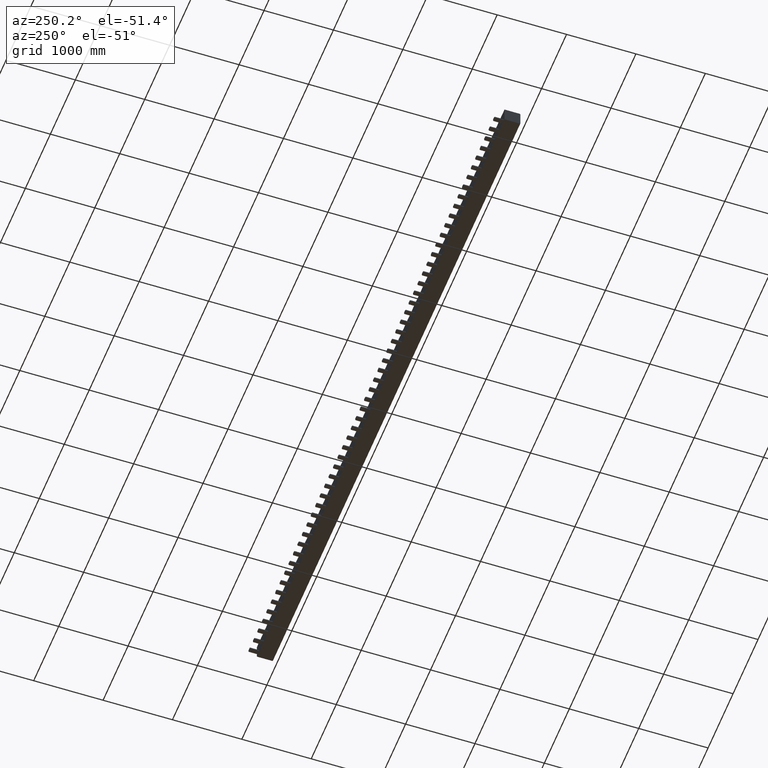
[diagram: clean part render]
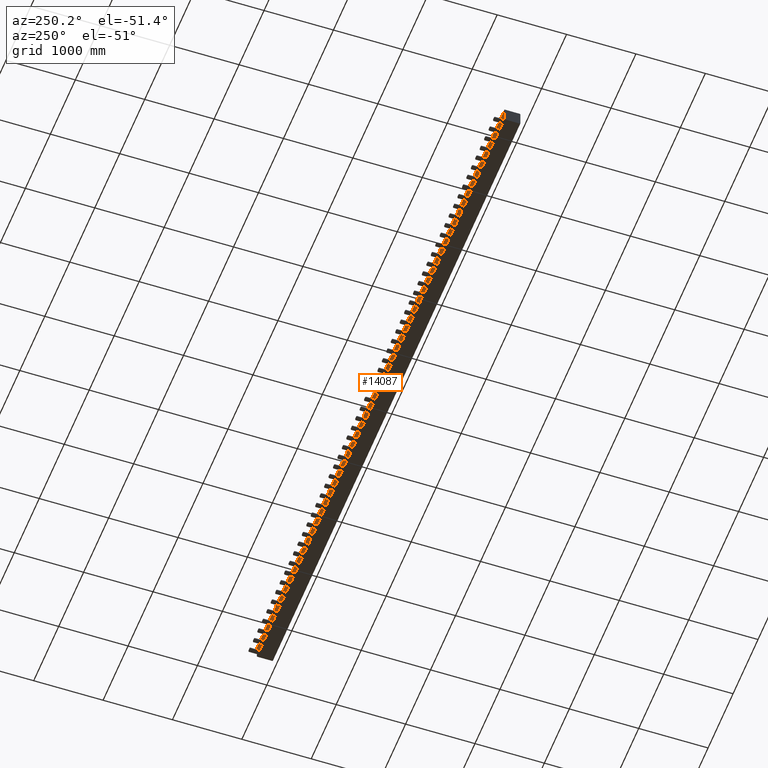
[diagram: same view with one face highlighted and labeled with its STEP entity id]
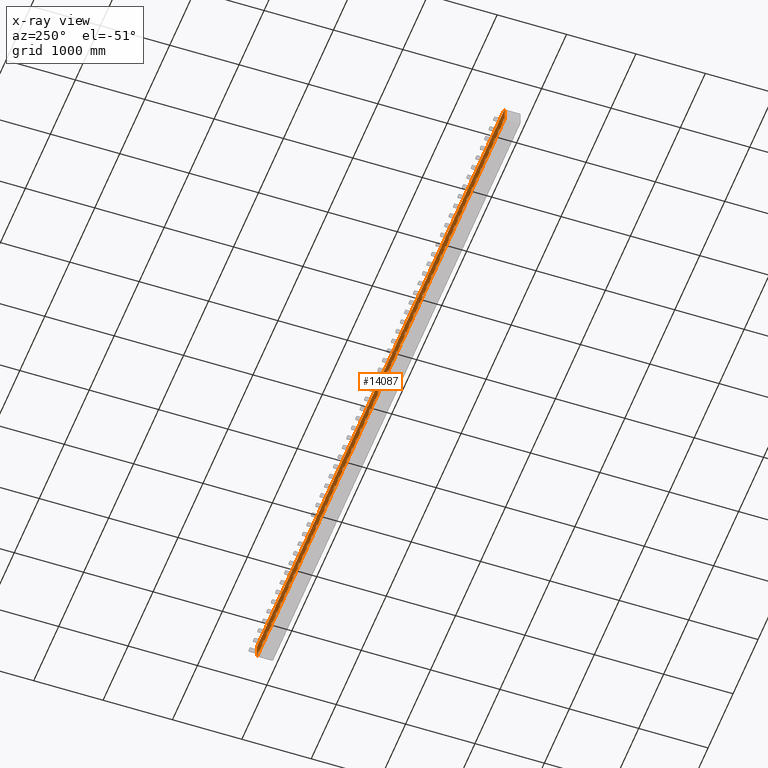
[diagram: x-ray of the same camera — body ghosted, the highlighted face saturated]
A machine part, auxiliary view. The second image highlights one B-rep face of the part: STEP entity #14087.
The next image is the same camera in x-ray: the body ghosted, the highlighted face saturated — about 0% of this face is hidden behind the body in this view.
In plain terms, the highlighted planar face has unit normal (0, 1, 0).
Its self-contained STEP definition (entity closure, byte-faithful):
#154=CARTESIAN_POINT('',(9485.0016946154556,252.82479942038478,190.50124850594779));
#155=VERTEX_POINT('',#154);
#156=CARTESIAN_POINT('',(9425.0016946154556,252.82479942038478,190.50124850594779));
#157=VERTEX_POINT('',#156);
#158=CARTESIAN_POINT('',(9485.0016946154556,252.82479942038478,190.50124850594779));
#159=DIRECTION('',(-1.0,0.0,0.0));
#160=VECTOR('',#159,60.0);
#161=LINE('',#158,#160);
#162=EDGE_CURVE('',#155,#157,#161,.T.);
#206=CARTESIAN_POINT('',(9425.0016946154556,252.82479942038893,218.78551975340838));
#207=VERTEX_POINT('',#206);
#215=CARTESIAN_POINT('',(9485.0016946154556,252.82479942038896,218.78551975340838));
#216=VERTEX_POINT('',#215);
#217=CARTESIAN_POINT('',(9485.0016946154556,252.82479942038896,218.78551975340838));
#218=DIRECTION('',(-1.0,0.0,0.0));
#219=VECTOR('',#218,60.0);
#220=LINE('',#217,#219);
#221=EDGE_CURVE('',#216,#207,#220,.T.);
#238=CARTESIAN_POINT('',(9485.0016946154556,252.82479942037853,218.78551975340838));
#239=DIRECTION('',(0.0,2.200642E-013,-1.0));
#240=VECTOR('',#239,28.284271247460595);
#241=LINE('',#238,#240);
#242=EDGE_CURVE('',#216,#155,#241,.T.);
#411=CARTESIAN_POINT('',(9425.0016946154556,252.82479942038478,190.50124850594779));
#412=DIRECTION('',(0.0,-2.200642E-013,1.0));
#413=VECTOR('',#412,28.284271247460595);
#414=LINE('',#411,#413);
#415=EDGE_CURVE('',#157,#207,#414,.T.);
#430=CARTESIAN_POINT('',(9069.0016946154537,252.82479942038447,190.5012485059479));
#431=VERTEX_POINT('',#430);
#432=CARTESIAN_POINT('',(9069.0016946154574,252.82479942038884,218.78551975340838));
#433=VERTEX_POINT('',#432);
#434=CARTESIAN_POINT('',(9069.0016946154574,252.82479942038447,190.5012485059479));
#435=DIRECTION('',(0.0,-2.200642E-013,1.0));
#436=VECTOR('',#435,28.284271247460453);
#437=LINE('',#434,#436);
#438=EDGE_CURVE('',#431,#433,#437,.T.);
#637=CARTESIAN_POINT('',(9129.0016946154556,252.82479942038884,218.78551975340838));
#638=VERTEX_POINT('',#637);
#639=CARTESIAN_POINT('',(9129.0016946154556,252.82479942038452,190.5012485059479));
#640=VERTEX_POINT('',#639);
#641=CARTESIAN_POINT('',(9129.0016946154556,252.82479942037838,218.78551975340838));
#642=DIRECTION('',(0.0,2.200642E-013,-1.0));
#643=VECTOR('',#642,28.284271247460453);
#644=LINE('',#641,#643);
#645=EDGE_CURVE('',#638,#640,#644,.T.);
#674=CARTESIAN_POINT('',(9129.0016946154556,252.82479942038884,218.78551975340838));
#675=DIRECTION('',(-1.0,0.0,0.0));
#676=VECTOR('',#675,60.0);
#677=LINE('',#674,#676);
#678=EDGE_CURVE('',#638,#433,#677,.T.);
#689=CARTESIAN_POINT('',(9129.0016946154556,252.82479942038447,190.5012485059479));
#690=DIRECTION('',(-1.0,0.0,0.0));
#691=VECTOR('',#690,60.000000000001819);
#692=LINE('',#689,#691);
#693=EDGE_CURVE('',#640,#431,#692,.T.);
#706=CARTESIAN_POINT('',(8773.0016946154574,252.82479942038418,190.50124850594796));
#707=VERTEX_POINT('',#706);
#708=CARTESIAN_POINT('',(8713.0016946154574,252.82479942038418,190.50124850594796));
#709=VERTEX_POINT('',#708);
#710=CARTESIAN_POINT('',(8773.0016946154574,252.82479942038418,190.50124850594796));
#711=DIRECTION('',(-1.0,0.0,0.0));
#712=VECTOR('',#711,60.0);
#713=LINE('',#710,#712);
#714=EDGE_CURVE('',#707,#709,#713,.T.);
#758=CARTESIAN_POINT('',(8713.0016946154574,252.82479942038876,218.78551975340838));
#759=VERTEX_POINT('',#758);
#767=CARTESIAN_POINT('',(8773.0016946154574,252.82479942038884,218.78551975340838));
#768=VERTEX_POINT('',#767);
#769=CARTESIAN_POINT('',(8773.0016946154574,252.82479942038884,218.78551975340838));
#770=DIRECTION('',(-1.0,0.0,0.0));
#771=VECTOR('',#770,60.0);
#772=LINE('',#769,#771);
#773=EDGE_CURVE('',#768,#759,#772,.T.);
#790=CARTESIAN_POINT('',(8773.0016946154574,252.82479942037807,218.78551975340838));
#791=DIRECTION('',(0.0,2.200642E-013,-1.0));
#792=VECTOR('',#791,28.284271247460396);
#793=LINE('',#790,#792);
#794=EDGE_CURVE('',#768,#707,#793,.T.);
#963=CARTESIAN_POINT('',(8713.0016946154574,252.82479942038418,190.50124850594796));
#964=DIRECTION('',(0.0,-2.200642E-013,1.0));
#965=VECTOR('',#964,28.284271247460396);
#966=LINE('',#963,#965);
#967=EDGE_CURVE('',#709,#759,#966,.T.);
#982=CARTESIAN_POINT('',(8357.0016946154574,252.82479942038395,190.50124850594798));
#983=VERTEX_POINT('',#982);
#984=CARTESIAN_POINT('',(8357.0016946154574,252.82479942038859,218.78551975340838));
#985=VERTEX_POINT('',#984);
#986=CARTESIAN_POINT('',(8357.0016946154574,252.82479942038393,190.50124850594798));
#987=DIRECTION('',(0.0,-2.200642E-013,1.0));
#988=VECTOR('',#987,28.284271247460396);
#989=LINE('',#986,#988);
#990=EDGE_CURVE('',#983,#985,#989,.T.);
#1189=CARTESIAN_POINT('',(8417.0016946154537,252.82479942038859,218.78551975340838));
#1190=VERTEX_POINT('',#1189);
#1191=CARTESIAN_POINT('',(8417.0016946154537,252.82479942038401,190.50124850594798));
#1192=VERTEX_POINT('',#1191);
#1193=CARTESIAN_POINT('',(8417.0016946154537,252.82479942037759,218.78551975340838));
#1194=DIRECTION('',(0.0,2.200642E-013,-1.0));
#1195=VECTOR('',#1194,28.284271247460367);
#1196=LINE('',#1193,#1195);
#1197=EDGE_CURVE('',#1190,#1192,#1196,.T.);
#1226=CARTESIAN_POINT('',(8417.0016946154537,252.82479942038873,218.78551975340838));
#1227=DIRECTION('',(-1.0,0.0,0.0));
#1228=VECTOR('',#1227,59.999999999996362);
#1229=LINE('',#1226,#1228);
#1230=EDGE_CURVE('',#1190,#985,#1229,.T.);
#1241=CARTESIAN_POINT('',(8417.0016946154537,252.82479942038395,190.50124850594798));
#1242=DIRECTION('',(-1.0,0.0,0.0));
#1243=VECTOR('',#1242,59.999999999996362);
#1244=LINE('',#1241,#1243);
#1245=EDGE_CURVE('',#1192,#983,#1244,.T.);
#1258=CARTESIAN_POINT('',(8061.0016946154565,252.82479942038361,190.5012485059481));
#1259=VERTEX_POINT('',#1258);
#1260=CARTESIAN_POINT('',(8001.0016946154565,252.82479942038361,190.5012485059481));
#1261=VERTEX_POINT('',#1260);
#1262=CARTESIAN_POINT('',(8061.0016946154565,252.82479942038361,190.5012485059481));
#1263=DIRECTION('',(-1.0,0.0,0.0));
#1264=VECTOR('',#1263,59.999999999999091);
#1265=LINE('',#1262,#1264);
#1266=EDGE_CURVE('',#1259,#1261,#1265,.T.);
#1310=CARTESIAN_POINT('',(8001.0016946154565,252.82479942038856,218.78551975340838));
#1311=VERTEX_POINT('',#1310);
#1319=CARTESIAN_POINT('',(8061.0016946154565,252.82479942038856,218.78551975340838));
#1320=VERTEX_POINT('',#1319);
#1321=CARTESIAN_POINT('',(8061.0016946154565,252.82479942038856,218.78551975340838));
#1322=DIRECTION('',(-1.0,0.0,0.0));
#1323=VECTOR('',#1322,59.999999999999091);
#1324=LINE('',#1321,#1323);
#1325=EDGE_CURVE('',#1320,#1311,#1324,.T.);
#1342=CARTESIAN_POINT('',(8061.0016946154565,252.82479942037747,218.78551975340838));
#1343=DIRECTION('',(0.0,2.200642E-013,-1.0));
#1344=VECTOR('',#1343,28.284271247460254);
#1345=LINE('',#1342,#1344);
#1346=EDGE_CURVE('',#1320,#1259,#1345,.T.);
#1515=CARTESIAN_POINT('',(8001.0016946154565,252.82479942038361,190.5012485059481));
#1516=DIRECTION('',(0.0,-2.200642E-013,1.0));
#1517=VECTOR('',#1516,28.284271247460282);
#1518=LINE('',#1515,#1517);
#1519=EDGE_CURVE('',#1261,#1311,#1518,.T.);
#1534=CARTESIAN_POINT('',(7645.0016946154556,252.82479942038339,190.5012485059481));
#1535=VERTEX_POINT('',#1534);
#1536=CARTESIAN_POINT('',(7645.0016946154556,252.82479942038839,218.78551975340838));
#1537=VERTEX_POINT('',#1536);
#1538=CARTESIAN_POINT('',(7645.0016946154556,252.82479942038327,190.5012485059481));
#1539=DIRECTION('',(0.0,-2.200642E-013,1.0));
#1540=VECTOR('',#1539,28.284271247460282);
#1541=LINE('',#1538,#1540);
#1542=EDGE_CURVE('',#1535,#1537,#1541,.T.);
#1741=CARTESIAN_POINT('',(7705.0016946154556,252.82479942038839,218.78551975340838));
#1742=VERTEX_POINT('',#1741);
#1743=CARTESIAN_POINT('',(7705.0016946154556,252.82479942038339,190.5012485059481));
#1744=VERTEX_POINT('',#1743);
#1745=CARTESIAN_POINT('',(7705.0016946154556,252.82479942037722,218.78551975340838));
#1746=DIRECTION('',(0.0,2.200642E-013,-1.0));
#1747=VECTOR('',#1746,28.284271247460254);
#1748=LINE('',#1745,#1747);
#1749=EDGE_CURVE('',#1742,#1744,#1748,.T.);
#1778=CARTESIAN_POINT('',(7705.0016946154556,252.82479942038839,218.78551975340838));
#1779=DIRECTION('',(-1.0,0.0,0.0));
#1780=VECTOR('',#1779,60.000000000000909);
#1781=LINE('',#1778,#1780);
#1782=EDGE_CURVE('',#1742,#1537,#1781,.T.);
#1793=CARTESIAN_POINT('',(7705.0016946154556,252.82479942038339,190.5012485059481));
#1794=DIRECTION('',(-1.0,0.0,0.0));
#1795=VECTOR('',#1794,60.000000000000909);
#1796=LINE('',#1793,#1795);
#1797=EDGE_CURVE('',#1744,#1535,#1796,.T.);
#1810=CARTESIAN_POINT('',(7349.0016946154574,252.82479942038307,190.50124850594818));
#1811=VERTEX_POINT('',#1810);
#1812=CARTESIAN_POINT('',(7289.0016946154556,252.82479942038307,190.50124850594818));
#1813=VERTEX_POINT('',#1812);
#1814=CARTESIAN_POINT('',(7349.0016946154574,252.82479942038307,190.50124850594818));
#1815=DIRECTION('',(-1.0,0.0,0.0));
#1816=VECTOR('',#1815,60.000000000000909);
#1817=LINE('',#1814,#1816);
#1818=EDGE_CURVE('',#1811,#1813,#1817,.T.);
#1862=CARTESIAN_POINT('',(7289.0016946154556,252.82479942038822,218.78551975340832));
#1863=VERTEX_POINT('',#1862);
#1871=CARTESIAN_POINT('',(7349.0016946154574,252.82479942038839,218.78551975340832));
#1872=VERTEX_POINT('',#1871);
#1873=CARTESIAN_POINT('',(7349.0016946154574,252.82479942038833,218.78551975340832));
#1874=DIRECTION('',(-1.0,0.0,0.0));
#1875=VECTOR('',#1874,60.000000000000909);
#1876=LINE('',#1873,#1875);
#1877=EDGE_CURVE('',#1872,#1863,#1876,.T.);
#1894=CARTESIAN_POINT('',(7349.0016946154574,252.82479942037691,218.78551975340832));
#1895=DIRECTION('',(0.0,2.200642E-013,-1.0));
#1896=VECTOR('',#1895,28.284271247460111);
#1897=LINE('',#1894,#1896);
#1898=EDGE_CURVE('',#1872,#1811,#1897,.T.);
#2067=CARTESIAN_POINT('',(7289.0016946154556,252.82479942038304,190.50124850594818));
#2068=DIRECTION('',(0.0,-2.200642E-013,1.0));
#2069=VECTOR('',#2068,28.284271247460111);
#2070=LINE('',#2067,#2069);
#2071=EDGE_CURVE('',#1813,#1863,#2070,.T.);
#2086=CARTESIAN_POINT('',(6933.0016946154556,252.82479942038276,190.50124850594827));
#2087=VERTEX_POINT('',#2086);
#2088=CARTESIAN_POINT('',(6933.0016946154556,252.82479942038808,218.78551975340832));
#2089=VERTEX_POINT('',#2088);
#2090=CARTESIAN_POINT('',(6933.0016946154556,252.82479942038276,190.50124850594827));
#2091=DIRECTION('',(0.0,-2.200642E-013,1.0));
#2092=VECTOR('',#2091,28.284271247460055);
#2093=LINE('',#2090,#2092);
#2094=EDGE_CURVE('',#2087,#2089,#2093,.T.);
#2293=CARTESIAN_POINT('',(6993.0016946154574,252.82479942038819,218.78551975340832));
#2294=VERTEX_POINT('',#2293);
#2295=CARTESIAN_POINT('',(6993.0016946154574,252.82479942038276,190.50124850594827));
#2296=VERTEX_POINT('',#2295);
#2297=CARTESIAN_POINT('',(6993.0016946154574,252.82479942037654,218.78551975340832));
#2298=DIRECTION('',(0.0,2.200642E-013,-1.0));
#2299=VECTOR('',#2298,28.284271247460055);
#2300=LINE('',#2297,#2299);
#2301=EDGE_CURVE('',#2294,#2296,#2300,.T.);
#2330=CARTESIAN_POINT('',(6993.0016946154574,252.8247994203881,218.78551975340832));
#2331=DIRECTION('',(-1.0,0.0,0.0));
#2332=VECTOR('',#2331,60.000000000000909);
#2333=LINE('',#2330,#2332);
#2334=EDGE_CURVE('',#2294,#2089,#2333,.T.);
#2345=CARTESIAN_POINT('',(6993.0016946154574,252.82479942038276,190.50124850594827));
#2346=DIRECTION('',(-1.0,0.0,0.0));
#2347=VECTOR('',#2346,60.000000000000909);
#2348=LINE('',#2345,#2347);
#2349=EDGE_CURVE('',#2296,#2087,#2348,.T.);
#2362=CARTESIAN_POINT('',(6637.0016946154565,252.82479942038253,190.50124850594838));
#2363=VERTEX_POINT('',#2362);
#2364=CARTESIAN_POINT('',(6577.0016946154556,252.82479942038242,190.50124850594838));
#2365=VERTEX_POINT('',#2364);
#2366=CARTESIAN_POINT('',(6637.0016946154565,252.82479942038253,190.50124850594827));
#2367=DIRECTION('',(-1.0,0.0,0.0));
#2368=VECTOR('',#2367,60.000000000000909);
#2369=LINE('',#2366,#2368);
#2370=EDGE_CURVE('',#2363,#2365,#2369,.T.);
#2414=CARTESIAN_POINT('',(6577.0016946154556,252.82479942038805,218.78551975340832));
#2415=VERTEX_POINT('',#2414);
#2423=CARTESIAN_POINT('',(6637.0016946154574,252.82479942038808,218.78551975340832));
#2424=VERTEX_POINT('',#2423);
#2425=CARTESIAN_POINT('',(6637.0016946154574,252.82479942038808,218.78551975340832));
#2426=DIRECTION('',(-1.0,0.0,0.0));
#2427=VECTOR('',#2426,60.000000000001819);
#2428=LINE('',#2425,#2427);
#2429=EDGE_CURVE('',#2424,#2415,#2428,.T.);
#2446=CARTESIAN_POINT('',(6637.0016946154574,252.82479942037628,218.78551975340832));
#2447=DIRECTION('',(0.0,2.200642E-013,-1.0));
#2448=VECTOR('',#2447,28.284271247459941);
#2449=LINE('',#2446,#2448);
#2450=EDGE_CURVE('',#2424,#2363,#2449,.T.);
#2619=CARTESIAN_POINT('',(6577.0016946154556,252.82479942038242,190.50124850594838));
#2620=DIRECTION('',(0.0,-2.200642E-013,1.0));
#2621=VECTOR('',#2620,28.284271247459941);
#2622=LINE('',#2619,#2621);
#2623=EDGE_CURVE('',#2365,#2415,#2622,.T.);
#2638=CARTESIAN_POINT('',(6221.0016946154556,252.82479942038219,190.50124850594827));
#2639=VERTEX_POINT('',#2638);
#2640=CARTESIAN_POINT('',(6221.0016946154592,252.82479942038802,218.78551975340832));
#2641=VERTEX_POINT('',#2640);
#2642=CARTESIAN_POINT('',(6221.0016946154592,252.82479942038219,190.50124850594827));
#2643=DIRECTION('',(0.0,-2.200642E-013,1.0));
#2644=VECTOR('',#2643,28.284271247460055);
#2645=LINE('',#2642,#2644);
#2646=EDGE_CURVE('',#2639,#2641,#2645,.T.);
#2845=CARTESIAN_POINT('',(6281.0016946154574,252.82479942038802,218.78551975340832));
#2846=VERTEX_POINT('',#2845);
#2847=CARTESIAN_POINT('',(6281.0016946154556,252.82479942038222,190.50124850594827));
#2848=VERTEX_POINT('',#2847);
#2849=CARTESIAN_POINT('',(6281.0016946154574,252.824799420376,218.78551975340832));
#2850=DIRECTION('',(0.0,2.200642E-013,-1.0));
#2851=VECTOR('',#2850,28.284271247460055);
#2852=LINE('',#2849,#2851);
#2853=EDGE_CURVE('',#2846,#2848,#2852,.T.);
#2882=CARTESIAN_POINT('',(6281.0016946154574,252.82479942038802,218.78551975340832));
#2883=DIRECTION('',(-1.0,0.0,0.0));
#2884=VECTOR('',#2883,59.999999999999091);
#2885=LINE('',#2882,#2884);
#2886=EDGE_CURVE('',#2846,#2641,#2885,.T.);
#2897=CARTESIAN_POINT('',(6281.0016946154556,252.82479942038219,190.50124850594827));
#2898=DIRECTION('',(-1.0,0.0,0.0));
#2899=VECTOR('',#2898,60.0);
#2900=LINE('',#2897,#2899);
#2901=EDGE_CURVE('',#2848,#2639,#2900,.T.);
#2914=CARTESIAN_POINT('',(5925.0016946154556,252.82479942038202,190.50124850594838));
#2915=VERTEX_POINT('',#2914);
#2916=CARTESIAN_POINT('',(5865.0016946154556,252.82479942038182,190.50124850594838));
#2917=VERTEX_POINT('',#2916);
#2918=CARTESIAN_POINT('',(5925.0016946154556,252.82479942038202,190.50124850594838));
#2919=DIRECTION('',(-1.0,0.0,0.0));
#2920=VECTOR('',#2919,60.0);
#2921=LINE('',#2918,#2920);
#2922=EDGE_CURVE('',#2915,#2917,#2921,.T.);
#2966=CARTESIAN_POINT('',(5865.0016946154565,252.8247994203879,218.78551975340824));
#2967=VERTEX_POINT('',#2966);
#2975=CARTESIAN_POINT('',(5925.0016946154565,252.8247994203879,218.78551975340824));
#2976=VERTEX_POINT('',#2975);
#2977=CARTESIAN_POINT('',(5925.0016946154565,252.8247994203879,218.78551975340824));
#2978=DIRECTION('',(-1.0,0.0,0.0));
#2979=VECTOR('',#2978,60.0);
#2980=LINE('',#2977,#2979);
#2981=EDGE_CURVE('',#2976,#2967,#2980,.T.);
#2998=CARTESIAN_POINT('',(5925.0016946154565,252.82479942037577,218.78551975340824));
#2999=DIRECTION('',(0.0,2.200642E-013,-1.0));
#3000=VECTOR('',#2999,28.284271247459856);
#3001=LINE('',#2998,#3000);
#3002=EDGE_CURVE('',#2976,#2915,#3001,.T.);
#3171=CARTESIAN_POINT('',(5865.0016946154565,252.82479942038194,190.50124850594838));
#3172=DIRECTION('',(0.0,-2.200642E-013,1.0));
#3173=VECTOR('',#3172,28.284271247459856);
#3174=LINE('',#3171,#3173);
#3175=EDGE_CURVE('',#2917,#2967,#3174,.T.);
#3190=CARTESIAN_POINT('',(5509.0016946154583,252.82479942038165,190.50124850594838));
#3191=VERTEX_POINT('',#3190);
#3192=CARTESIAN_POINT('',(5509.0016946154556,252.82479942038765,218.78551975340824));
#3193=VERTEX_POINT('',#3192);
#3194=CARTESIAN_POINT('',(5509.0016946154556,252.82479942038165,190.50124850594838));
#3195=DIRECTION('',(0.0,-2.200642E-013,1.0));
#3196=VECTOR('',#3195,28.284271247459856);
#3197=LINE('',#3194,#3196);
#3198=EDGE_CURVE('',#3191,#3193,#3197,.T.);
#3397=CARTESIAN_POINT('',(5569.0016946154556,252.82479942038771,218.78551975340824));
#3398=VERTEX_POINT('',#3397);
#3399=CARTESIAN_POINT('',(5569.0016946154574,252.82479942038165,190.50124850594838));
#3400=VERTEX_POINT('',#3399);
#3401=CARTESIAN_POINT('',(5569.0016946154556,252.82479942037543,218.78551975340824));
#3402=DIRECTION('',(0.0,2.200642E-013,-1.0));
#3403=VECTOR('',#3402,28.284271247459856);
#3404=LINE('',#3401,#3403);
#3405=EDGE_CURVE('',#3398,#3400,#3404,.T.);
#3434=CARTESIAN_POINT('',(5569.0016946154556,252.82479942038771,218.78551975340824));
#3435=DIRECTION('',(-1.0,0.0,0.0));
#3436=VECTOR('',#3435,60.0);
#3437=LINE('',#3434,#3436);
#3438=EDGE_CURVE('',#3398,#3193,#3437,.T.);
#3449=CARTESIAN_POINT('',(5569.0016946154574,252.82479942038165,190.50124850594838));
#3450=DIRECTION('',(-1.0,0.0,0.0));
#3451=VECTOR('',#3450,59.999999999999091);
#3452=LINE('',#3449,#3451);
#3453=EDGE_CURVE('',#3400,#3191,#3452,.T.);
#3466=CARTESIAN_POINT('',(5213.0016946154574,252.82479942038134,190.50124850594847));
#3467=VERTEX_POINT('',#3466);
#3468=CARTESIAN_POINT('',(5153.0016946154574,252.82479942038128,190.50124850594847));
#3469=VERTEX_POINT('',#3468);
#3470=CARTESIAN_POINT('',(5213.0016946154574,252.82479942038134,190.50124850594847));
#3471=DIRECTION('',(-1.0,0.0,0.0));
#3472=VECTOR('',#3471,59.999999999999091);
#3473=LINE('',#3470,#3472);
#3474=EDGE_CURVE('',#3467,#3469,#3473,.T.);
#3518=CARTESIAN_POINT('',(5153.0016946154574,252.82479942038762,218.78551975340824));
#3519=VERTEX_POINT('',#3518);
#3527=CARTESIAN_POINT('',(5213.0016946154574,252.82479942038765,218.78551975340824));
#3528=VERTEX_POINT('',#3527);
#3529=CARTESIAN_POINT('',(5213.0016946154574,252.82479942038765,218.78551975340824));
#3530=DIRECTION('',(-1.0,0.0,0.0));
#3531=VECTOR('',#3530,59.999999999999091);
#3532=LINE('',#3529,#3531);
#3533=EDGE_CURVE('',#3528,#3519,#3532,.T.);
#3550=CARTESIAN_POINT('',(5213.0016946154574,252.82479942037511,218.78551975340824));
#3551=DIRECTION('',(0.0,2.200642E-013,-1.0));
#3552=VECTOR('',#3551,28.284271247459742);
#3553=LINE('',#3550,#3552);
#3554=EDGE_CURVE('',#3528,#3467,#3553,.T.);
#3723=CARTESIAN_POINT('',(5153.0016946154574,252.82479942038128,190.50124850594847));
#3724=DIRECTION('',(0.0,-2.200642E-013,1.0));
#3725=VECTOR('',#3724,28.284271247459742);
#3726=LINE('',#3723,#3725);
#3727=EDGE_CURVE('',#3469,#3519,#3726,.T.);
#3742=CARTESIAN_POINT('',(4797.0016946154574,252.824799420381,190.50124850594852));
#3743=VERTEX_POINT('',#3742);
#3744=CARTESIAN_POINT('',(4797.0016946154574,252.82479942038754,218.78551975340824));
#3745=VERTEX_POINT('',#3744);
#3746=CARTESIAN_POINT('',(4797.0016946154574,252.824799420381,190.50124850594852));
#3747=DIRECTION('',(0.0,-2.200642E-013,1.0));
#3748=VECTOR('',#3747,28.284271247459714);
#3749=LINE('',#3746,#3748);
#3750=EDGE_CURVE('',#3743,#3745,#3749,.T.);
#3949=CARTESIAN_POINT('',(4857.0016946154565,252.82479942038762,218.78551975340824));
#3950=VERTEX_POINT('',#3949);
#3951=CARTESIAN_POINT('',(4857.0016946154574,252.82479942038111,190.50124850594852));
#3952=VERTEX_POINT('',#3951);
#3953=CARTESIAN_POINT('',(4857.0016946154565,252.82479942037492,218.78551975340824));
#3954=DIRECTION('',(0.0,2.200642E-013,-1.0));
#3955=VECTOR('',#3954,28.284271247459714);
#3956=LINE('',#3953,#3955);
#3957=EDGE_CURVE('',#3950,#3952,#3956,.T.);
#3986=CARTESIAN_POINT('',(4857.0016946154565,252.82479942038762,218.78551975340824));
#3987=DIRECTION('',(-1.0,0.0,0.0));
#3988=VECTOR('',#3987,59.999999999999091);
#3989=LINE('',#3986,#3988);
#3990=EDGE_CURVE('',#3950,#3745,#3989,.T.);
#4001=CARTESIAN_POINT('',(4857.0016946154574,252.824799420381,190.50124850594852));
#4002=DIRECTION('',(-1.0,0.0,0.0));
#4003=VECTOR('',#4002,60.0);
#4004=LINE('',#4001,#4003);
#4005=EDGE_CURVE('',#3952,#3743,#4004,.T.);
#4018=CARTESIAN_POINT('',(4501.0016946154574,252.8247994203808,190.50124850594864));
#4019=VERTEX_POINT('',#4018);
#4020=CARTESIAN_POINT('',(4441.0016946154574,252.8247994203808,190.50124850594864));
#4021=VERTEX_POINT('',#4020);
#4022=CARTESIAN_POINT('',(4501.0016946154574,252.8247994203808,190.50124850594864));
#4023=DIRECTION('',(-1.0,0.0,0.0));
#4024=VECTOR('',#4023,60.0);
#4025=LINE('',#4022,#4024);
#4026=EDGE_CURVE('',#4019,#4021,#4025,.T.);
#4070=CARTESIAN_POINT('',(4441.0016946154574,252.82479942038736,218.78551975340824));
#4071=VERTEX_POINT('',#4070);
#4079=CARTESIAN_POINT('',(4501.0016946154574,252.82479942038742,218.78551975340824));
#4080=VERTEX_POINT('',#4079);
#4081=CARTESIAN_POINT('',(4501.0016946154574,252.82479942038742,218.78551975340824));
#4082=DIRECTION('',(-1.0,0.0,0.0));
#4083=VECTOR('',#4082,60.0);
#4084=LINE('',#4081,#4083);
#4085=EDGE_CURVE('',#4080,#4071,#4084,.T.);
#4102=CARTESIAN_POINT('',(4501.0016946154574,252.82479942037455,218.78551975340824));
#4103=DIRECTION('',(0.0,2.200642E-013,-1.0));
#4104=VECTOR('',#4103,28.2842712474596);
#4105=LINE('',#4102,#4104);
#4106=EDGE_CURVE('',#4080,#4019,#4105,.T.);
#4275=CARTESIAN_POINT('',(4441.0016946154574,252.82479942038066,190.50124850594864));
#4276=DIRECTION('',(0.0,-2.200642E-013,1.0));
#4277=VECTOR('',#4276,28.2842712474596);
#4278=LINE('',#4275,#4277);
#4279=EDGE_CURVE('',#4021,#4071,#4278,.T.);
#4294=CARTESIAN_POINT('',(4085.0016946154569,252.82479942038043,190.50124850594869));
#4295=VERTEX_POINT('',#4294);
#4296=CARTESIAN_POINT('',(4085.0016946154569,252.82479942038734,218.78551975340824));
#4297=VERTEX_POINT('',#4296);
#4298=CARTESIAN_POINT('',(4085.0016946154569,252.8247994203806,190.50124850594869));
#4299=DIRECTION('',(0.0,-2.200642E-013,1.0));
#4300=VECTOR('',#4299,28.284271247459543);
#4301=LINE('',#4298,#4300);
#4302=EDGE_CURVE('',#4295,#4297,#4301,.T.);
#4501=CARTESIAN_POINT('',(4145.0016946154565,252.82479942038734,218.78551975340824));
#4502=VERTEX_POINT('',#4501);
#4503=CARTESIAN_POINT('',(4145.0016946154565,252.8247994203806,190.50124850594869));
#4504=VERTEX_POINT('',#4503);
#4505=CARTESIAN_POINT('',(4145.0016946154565,252.82479942037418,218.78551975340824));
#4506=DIRECTION('',(0.0,2.200642E-013,-1.0));
#4507=VECTOR('',#4506,28.284271247459543);
#4508=LINE('',#4505,#4507);
#4509=EDGE_CURVE('',#4502,#4504,#4508,.T.);
#4538=CARTESIAN_POINT('',(4145.0016946154565,252.82479942038734,218.78551975340824));
#4539=DIRECTION('',(-1.0,0.0,0.0));
#4540=VECTOR('',#4539,59.999999999999545);
#4541=LINE('',#4538,#4540);
#4542=EDGE_CURVE('',#4502,#4297,#4541,.T.);
#4553=CARTESIAN_POINT('',(4145.0016946154565,252.82479942038043,190.50124850594869));
#4554=DIRECTION('',(-1.0,0.0,0.0));
#4555=VECTOR('',#4554,59.999999999999545);
#4556=LINE('',#4553,#4555);
#4557=EDGE_CURVE('',#4504,#4295,#4556,.T.);
#4570=CARTESIAN_POINT('',(3789.001694615456,252.82479942038023,190.50124850594875));
#4571=VERTEX_POINT('',#4570);
#4572=CARTESIAN_POINT('',(3729.0016946154565,252.8247994203802,190.50124850594881));
#4573=VERTEX_POINT('',#4572);
#4574=CARTESIAN_POINT('',(3789.001694615456,252.82479942038023,190.50124850594875));
#4575=DIRECTION('',(-1.0,0.0,0.0));
#4576=VECTOR('',#4575,59.999999999999545);
#4577=LINE('',#4574,#4576);
#4578=EDGE_CURVE('',#4571,#4573,#4577,.T.);
#4622=CARTESIAN_POINT('',(3729.001694615456,252.82479942038725,218.78551975340824));
#4623=VERTEX_POINT('',#4622);
#4631=CARTESIAN_POINT('',(3789.001694615456,252.82479942038725,218.78551975340824));
#4632=VERTEX_POINT('',#4631);
#4633=CARTESIAN_POINT('',(3789.001694615456,252.82479942038731,218.78551975340824));
#4634=DIRECTION('',(-1.0,0.0,0.0));
#4635=VECTOR('',#4634,60.0);
#4636=LINE('',#4633,#4635);
#4637=EDGE_CURVE('',#4632,#4623,#4636,.T.);
#4654=CARTESIAN_POINT('',(3789.001694615456,252.82479942037401,218.78551975340824));
#4655=DIRECTION('',(0.0,2.200642E-013,-1.0));
#4656=VECTOR('',#4655,28.284271247459458);
#4657=LINE('',#4654,#4656);
#4658=EDGE_CURVE('',#4632,#4571,#4657,.T.);
#4827=CARTESIAN_POINT('',(3729.001694615456,252.82479942038009,190.50124850594881));
#4828=DIRECTION('',(0.0,-2.200642E-013,1.0));
#4829=VECTOR('',#4828,28.284271247459429);
#4830=LINE('',#4827,#4829);
#4831=EDGE_CURVE('',#4573,#4623,#4830,.T.);
#4846=CARTESIAN_POINT('',(3373.0016946154565,252.82479942037986,190.50124850594881));
#4847=VERTEX_POINT('',#4846);
#4848=CARTESIAN_POINT('',(3373.0016946154556,252.82479942038714,218.78551975340824));
#4849=VERTEX_POINT('',#4848);
#4850=CARTESIAN_POINT('',(3373.0016946154556,252.82479942037986,190.50124850594881));
#4851=DIRECTION('',(0.0,-2.200642E-013,1.0));
#4852=VECTOR('',#4851,28.284271247459429);
#4853=LINE('',#4850,#4852);
#4854=EDGE_CURVE('',#4847,#4849,#4853,.T.);
#5053=CARTESIAN_POINT('',(3433.0016946154556,252.82479942038714,218.78551975340824));
#5054=VERTEX_POINT('',#5053);
#5055=CARTESIAN_POINT('',(3433.0016946154556,252.82479942037995,190.50124850594881));
#5056=VERTEX_POINT('',#5055);
#5057=CARTESIAN_POINT('',(3433.0016946154556,252.82479942037367,218.78551975340824));
#5058=DIRECTION('',(0.0,2.200642E-013,-1.0));
#5059=VECTOR('',#5058,28.284271247459429);
#5060=LINE('',#5057,#5059);
#5061=EDGE_CURVE('',#5054,#5056,#5060,.T.);
#5090=CARTESIAN_POINT('',(3433.0016946154556,252.82479942038725,218.78551975340824));
#5091=DIRECTION('',(-1.0,0.0,0.0));
#5092=VECTOR('',#5091,60.0);
#5093=LINE('',#5090,#5092);
#5094=EDGE_CURVE('',#5054,#4849,#5093,.T.);
#5105=CARTESIAN_POINT('',(3433.0016946154556,252.82479942037986,190.50124850594881));
#5106=DIRECTION('',(-1.0,0.0,0.0));
#5107=VECTOR('',#5106,59.999999999999545);
#5108=LINE('',#5105,#5107);
#5109=EDGE_CURVE('',#5056,#4847,#5108,.T.);
#5122=CARTESIAN_POINT('',(3077.001694615456,252.82479942037966,190.50124850594887));
#5123=VERTEX_POINT('',#5122);
#5124=CARTESIAN_POINT('',(3017.001694615456,252.82479942037966,190.50124850594887));
#5125=VERTEX_POINT('',#5124);
#5126=CARTESIAN_POINT('',(3077.001694615456,252.82479942037966,190.50124850594887));
#5127=DIRECTION('',(-1.0,0.0,0.0));
#5128=VECTOR('',#5127,60.0);
#5129=LINE('',#5126,#5128);
#5130=EDGE_CURVE('',#5123,#5125,#5129,.T.);
#5174=CARTESIAN_POINT('',(3017.001694615456,252.82479942038694,218.78551975340824));
#5175=VERTEX_POINT('',#5174);
#5183=CARTESIAN_POINT('',(3077.001694615456,252.82479942038697,218.78551975340824));
#5184=VERTEX_POINT('',#5183);
#5185=CARTESIAN_POINT('',(3077.001694615456,252.82479942038697,218.78551975340824));
#5186=DIRECTION('',(-1.0,0.0,0.0));
#5187=VECTOR('',#5186,60.0);
#5188=LINE('',#5185,#5187);
#5189=EDGE_CURVE('',#5184,#5175,#5188,.T.);
#5206=CARTESIAN_POINT('',(3077.001694615456,252.82479942037341,218.78551975340824));
#5207=DIRECTION('',(0.0,2.200642E-013,-1.0));
#5208=VECTOR('',#5207,28.284271247459372);
#5209=LINE('',#5206,#5208);
#5210=EDGE_CURVE('',#5184,#5123,#5209,.T.);
#5379=CARTESIAN_POINT('',(3017.001694615456,252.82479942037966,190.50124850594887));
#5380=DIRECTION('',(0.0,-2.200642E-013,1.0));
#5381=VECTOR('',#5380,28.284271247459344);
#5382=LINE('',#5379,#5381);
#5383=EDGE_CURVE('',#5125,#5175,#5382,.T.);
#5398=CARTESIAN_POINT('',(2661.0016946154542,252.82479942037929,190.50124850594887));
#5399=VERTEX_POINT('',#5398);
#5400=CARTESIAN_POINT('',(2661.0016946154542,252.82479942038685,218.78551975340824));
#5401=VERTEX_POINT('',#5400);
#5402=CARTESIAN_POINT('',(2661.0016946154542,252.82479942037929,190.50124850594887));
#5403=DIRECTION('',(0.0,-2.200642E-013,1.0));
#5404=VECTOR('',#5403,28.284271247459344);
#5405=LINE('',#5402,#5404);
#5406=EDGE_CURVE('',#5399,#5401,#5405,.T.);
#5605=CARTESIAN_POINT('',(2721.001694615456,252.82479942038694,218.78551975340824));
#5606=VERTEX_POINT('',#5605);
#5607=CARTESIAN_POINT('',(2721.001694615456,252.82479942037935,190.50124850594881));
#5608=VERTEX_POINT('',#5607);
#5609=CARTESIAN_POINT('',(2721.001694615456,252.8247994203731,218.78551975340824));
#5610=DIRECTION('',(0.0,2.200642E-013,-1.0));
#5611=VECTOR('',#5610,28.284271247459429);
#5612=LINE('',#5609,#5611);
#5613=EDGE_CURVE('',#5606,#5608,#5612,.T.);
#5642=CARTESIAN_POINT('',(2721.001694615456,252.82479942038694,218.78551975340824));
#5643=DIRECTION('',(-1.0,0.0,0.0));
#5644=VECTOR('',#5643,60.000000000001364);
#5645=LINE('',#5642,#5644);
#5646=EDGE_CURVE('',#5606,#5401,#5645,.T.);
#5657=CARTESIAN_POINT('',(2721.001694615456,252.82479942037929,190.50124850594887));
#5658=DIRECTION('',(-1.0,0.0,0.0));
#5659=VECTOR('',#5658,60.000000000001364);
#5660=LINE('',#5657,#5659);
#5661=EDGE_CURVE('',#5608,#5399,#5660,.T.);
#5674=CARTESIAN_POINT('',(2365.0016946154551,252.82479942037909,190.50124850594887));
#5675=VERTEX_POINT('',#5674);
#5676=CARTESIAN_POINT('',(2305.0016946154547,252.82479942037898,190.50124850594887));
#5677=VERTEX_POINT('',#5676);
#5678=CARTESIAN_POINT('',(2365.0016946154551,252.82479942037898,190.50124850594887));
#5679=DIRECTION('',(-1.0,0.0,0.0));
#5680=VECTOR('',#5679,60.000000000000455);
#5681=LINE('',#5678,#5680);
#5682=EDGE_CURVE('',#5675,#5677,#5681,.T.);
#5726=CARTESIAN_POINT('',(2305.0016946154547,252.8247994203868,218.78551975340804));
#5727=VERTEX_POINT('',#5726);
#5735=CARTESIAN_POINT('',(2365.0016946154551,252.8247994203868,218.78551975340804));
#5736=VERTEX_POINT('',#5735);
#5737=CARTESIAN_POINT('',(2365.0016946154551,252.8247994203868,218.78551975340804));
#5738=DIRECTION('',(-1.0,0.0,0.0));
#5739=VECTOR('',#5738,60.000000000000455);
#5740=LINE('',#5737,#5739);
#5741=EDGE_CURVE('',#5736,#5727,#5740,.T.);
#5758=CARTESIAN_POINT('',(2365.0016946154551,252.82479942037281,218.78551975340804));
#5759=DIRECTION('',(0.0,2.200642E-013,-1.0));
#5760=VECTOR('',#5759,28.284271247459174);
#5761=LINE('',#5758,#5760);
#5762=EDGE_CURVE('',#5736,#5675,#5761,.T.);
#5931=CARTESIAN_POINT('',(2305.0016946154547,252.82479942037898,190.50124850594887));
#5932=DIRECTION('',(0.0,-2.200642E-013,1.0));
#5933=VECTOR('',#5932,28.284271247459174);
#5934=LINE('',#5931,#5933);
#5935=EDGE_CURVE('',#5677,#5727,#5934,.T.);
#5950=CARTESIAN_POINT('',(1949.0016946154556,252.82479942037878,190.50124850594898));
#5951=VERTEX_POINT('',#5950);
#5952=CARTESIAN_POINT('',(1949.0016946154556,252.82479942038663,218.78551975340804));
#5953=VERTEX_POINT('',#5952);
#5954=CARTESIAN_POINT('',(1949.0016946154556,252.82479942037878,190.50124850594898));
#5955=DIRECTION('',(0.0,-2.200642E-013,1.0));
#5956=VECTOR('',#5955,28.28427124745906);
#5957=LINE('',#5954,#5956);
#5958=EDGE_CURVE('',#5951,#5953,#5957,.T.);
#6157=CARTESIAN_POINT('',(2009.0016946154565,252.82479942038663,218.78551975340804));
#6158=VERTEX_POINT('',#6157);
#6159=CARTESIAN_POINT('',(2009.0016946154565,252.82479942037881,190.50124850594898));
#6160=VERTEX_POINT('',#6159);
#6161=CARTESIAN_POINT('',(2009.0016946154565,252.82479942037256,218.78551975340804));
#6162=DIRECTION('',(0.0,2.200642E-013,-1.0));
#6163=VECTOR('',#6162,28.28427124745906);
#6164=LINE('',#6161,#6163);
#6165=EDGE_CURVE('',#6158,#6160,#6164,.T.);
#6194=CARTESIAN_POINT('',(2009.0016946154565,252.82479942038663,218.78551975340804));
#6195=DIRECTION('',(-1.0,0.0,0.0));
#6196=VECTOR('',#6195,60.000000000001137);
#6197=LINE('',#6194,#6196);
#6198=EDGE_CURVE('',#6158,#5953,#6197,.T.);
#6209=CARTESIAN_POINT('',(2009.0016946154565,252.82479942037878,190.50124850594898));
#6210=DIRECTION('',(-1.0,0.0,0.0));
#6211=VECTOR('',#6210,60.000000000001137);
#6212=LINE('',#6209,#6211);
#6213=EDGE_CURVE('',#6160,#5951,#6212,.T.);
#6226=CARTESIAN_POINT('',(1653.001694615456,252.8247994203785,190.50124850594898));
#6227=VERTEX_POINT('',#6226);
#6228=CARTESIAN_POINT('',(1593.0016946154551,252.82479942037841,190.50124850594904));
#6229=VERTEX_POINT('',#6228);
#6230=CARTESIAN_POINT('',(1653.001694615456,252.82479942037841,190.50124850594904));
#6231=DIRECTION('',(-1.0,0.0,0.0));
#6232=VECTOR('',#6231,60.000000000000909);
#6233=LINE('',#6230,#6232);
#6234=EDGE_CURVE('',#6227,#6229,#6233,.T.);
#6278=CARTESIAN_POINT('',(1593.0016946154551,252.82479942038648,218.78551975340804));
#6279=VERTEX_POINT('',#6278);
#6287=CARTESIAN_POINT('',(1653.001694615456,252.82479942038648,218.78551975340804));
#6288=VERTEX_POINT('',#6287);
#6289=CARTESIAN_POINT('',(1653.001694615456,252.8247994203866,218.78551975340804));
#6290=DIRECTION('',(-1.0,0.0,0.0));
#6291=VECTOR('',#6290,60.000000000000909);
#6292=LINE('',#6289,#6291);
#6293=EDGE_CURVE('',#6288,#6279,#6292,.T.);
#6310=CARTESIAN_POINT('',(1653.001694615456,252.82479942037224,218.78551975340804));
#6311=DIRECTION('',(0.0,2.200642E-013,-1.0));
#6312=VECTOR('',#6311,28.28427124745906);
#6313=LINE('',#6310,#6312);
#6314=EDGE_CURVE('',#6288,#6227,#6313,.T.);
#6483=CARTESIAN_POINT('',(1593.0016946154551,252.82479942037841,190.50124850594904));
#6484=DIRECTION('',(0.0,-2.200642E-013,1.0));
#6485=VECTOR('',#6484,28.284271247459003);
#6486=LINE('',#6483,#6485);
#6487=EDGE_CURVE('',#6229,#6279,#6486,.T.);
#6502=CARTESIAN_POINT('',(1237.0016946154551,252.82479942037813,190.50124850594912));
#6503=VERTEX_POINT('',#6502);
#6504=CARTESIAN_POINT('',(1237.0016946154551,252.82479942038648,218.78551975340804));
#6505=VERTEX_POINT('',#6504);
#6506=CARTESIAN_POINT('',(1237.0016946154551,252.82479942037813,190.50124850594912));
#6507=DIRECTION('',(0.0,-2.200642E-013,1.0));
#6508=VECTOR('',#6507,28.284271247458918);
#6509=LINE('',#6506,#6508);
#6510=EDGE_CURVE('',#6503,#6505,#6509,.T.);
#6709=CARTESIAN_POINT('',(1297.0016946154558,252.82479942038648,218.78551975340804));
#6710=VERTEX_POINT('',#6709);
#6711=CARTESIAN_POINT('',(1297.0016946154558,252.82479942037816,190.50124850594912));
#6712=VERTEX_POINT('',#6711);
#6713=CARTESIAN_POINT('',(1297.0016946154558,252.8247994203719,218.78551975340804));
#6714=DIRECTION('',(0.0,2.200642E-013,-1.0));
#6715=VECTOR('',#6714,28.284271247458918);
#6716=LINE('',#6713,#6715);
#6717=EDGE_CURVE('',#6710,#6712,#6716,.T.);
#6746=CARTESIAN_POINT('',(1297.0016946154558,252.82479942038648,218.78551975340804));
#6747=DIRECTION('',(-1.0,0.0,0.0));
#6748=VECTOR('',#6747,60.000000000000682);
#6749=LINE('',#6746,#6748);
#6750=EDGE_CURVE('',#6710,#6505,#6749,.T.);
#6761=CARTESIAN_POINT('',(1297.0016946154558,252.82479942037813,190.50124850594912));
#6762=DIRECTION('',(-1.0,0.0,0.0));
#6763=VECTOR('',#6762,60.000000000000682);
#6764=LINE('',#6761,#6763);
#6765=EDGE_CURVE('',#6712,#6503,#6764,.T.);
#6778=CARTESIAN_POINT('',(941.00169461545556,252.82479942037793,190.50124850594923));
#6779=VERTEX_POINT('',#6778);
#6780=CARTESIAN_POINT('',(881.00169461545488,252.82479942037781,190.50124850594923));
#6781=VERTEX_POINT('',#6780);
#6782=CARTESIAN_POINT('',(941.00169461545556,252.82479942037781,190.50124850594923));
#6783=DIRECTION('',(-1.0,0.0,0.0));
#6784=VECTOR('',#6783,60.000000000000682);
#6785=LINE('',#6782,#6784);
#6786=EDGE_CURVE('',#6779,#6781,#6785,.T.);
#6830=CARTESIAN_POINT('',(881.00169461545488,252.82479942038634,218.78551975340804));
#6831=VERTEX_POINT('',#6830);
#6839=CARTESIAN_POINT('',(941.00169461545556,252.82479942038634,218.78551975340804));
#6840=VERTEX_POINT('',#6839);
#6841=CARTESIAN_POINT('',(941.00169461545556,252.82479942038634,218.78551975340804));
#6842=DIRECTION('',(-1.0,0.0,0.0));
#6843=VECTOR('',#6842,60.000000000000682);
#6844=LINE('',#6841,#6843);
#6845=EDGE_CURVE('',#6840,#6831,#6844,.T.);
#6862=CARTESIAN_POINT('',(941.00169461545556,252.8247994203717,218.78551975340804));
#6863=DIRECTION('',(0.0,2.200642E-013,-1.0));
#6864=VECTOR('',#6863,28.284271247458832);
#6865=LINE('',#6862,#6864);
#6866=EDGE_CURVE('',#6840,#6779,#6865,.T.);
#7035=CARTESIAN_POINT('',(881.00169461545488,252.82479942037781,190.50124850594923));
#7036=DIRECTION('',(0.0,-2.200642E-013,1.0));
#7037=VECTOR('',#7036,28.284271247458832);
#7038=LINE('',#7035,#7037);
#7039=EDGE_CURVE('',#6781,#6831,#7038,.T.);
#7054=CARTESIAN_POINT('',(525.00169461545465,252.82479942037759,190.50124850594923));
#7055=VERTEX_POINT('',#7054);
#7056=CARTESIAN_POINT('',(525.00169461545465,252.8247994203862,218.78551975340804));
#7057=VERTEX_POINT('',#7056);
#7058=CARTESIAN_POINT('',(525.00169461545465,252.82479942037759,190.50124850594923));
#7059=DIRECTION('',(0.0,-2.200642E-013,1.0));
#7060=VECTOR('',#7059,28.284271247458832);
#7061=LINE('',#7058,#7060);
#7062=EDGE_CURVE('',#7055,#7057,#7061,.T.);
#7261=CARTESIAN_POINT('',(585.00169461545534,252.82479942038628,218.78551975340804));
#7262=VERTEX_POINT('',#7261);
#7263=CARTESIAN_POINT('',(585.00169461545534,252.82479942037759,190.50124850594923));
#7264=VERTEX_POINT('',#7263);
#7265=CARTESIAN_POINT('',(585.00169461545534,252.82479942037133,218.78551975340804));
#7266=DIRECTION('',(0.0,2.200642E-013,-1.0));
#7267=VECTOR('',#7266,28.284271247458832);
#7268=LINE('',#7265,#7267);
#7269=EDGE_CURVE('',#7262,#7264,#7268,.T.);
#7298=CARTESIAN_POINT('',(585.00169461545534,252.82479942038628,218.78551975340804));
#7299=DIRECTION('',(-1.0,0.0,0.0));
#7300=VECTOR('',#7299,60.000000000000682);
#7301=LINE('',#7298,#7300);
#7302=EDGE_CURVE('',#7262,#7057,#7301,.T.);
#7313=CARTESIAN_POINT('',(585.00169461545534,252.82479942037759,190.50124850594923));
#7314=DIRECTION('',(-1.0,0.0,0.0));
#7315=VECTOR('',#7314,60.000000000000682);
#7316=LINE('',#7313,#7315);
#7317=EDGE_CURVE('',#7264,#7055,#7316,.T.);
#7330=CARTESIAN_POINT('',(229.00169461545519,252.82479942037736,190.50124850594932));
#7331=VERTEX_POINT('',#7330);
#7332=CARTESIAN_POINT('',(169.00169461545434,252.82479942037725,190.50124850594932));
#7333=VERTEX_POINT('',#7332);
#7334=CARTESIAN_POINT('',(229.00169461545519,252.82479942037725,190.50124850594932));
#7335=DIRECTION('',(-1.0,0.0,0.0));
#7336=VECTOR('',#7335,60.000000000000853);
#7337=LINE('',#7334,#7336);
#7338=EDGE_CURVE('',#7331,#7333,#7337,.T.);
#7382=CARTESIAN_POINT('',(169.00169461545434,252.82479942038609,218.78551975340804));
#7383=VERTEX_POINT('',#7382);
#7391=CARTESIAN_POINT('',(229.00169461545519,252.8247994203862,218.78551975340804));
#7392=VERTEX_POINT('',#7391);
#7393=CARTESIAN_POINT('',(229.00169461545519,252.8247994203862,218.78551975340804));
#7394=DIRECTION('',(-1.0,0.0,0.0));
#7395=VECTOR('',#7394,60.000000000000853);
#7396=LINE('',#7393,#7395);
#7397=EDGE_CURVE('',#7392,#7383,#7396,.T.);
#7414=CARTESIAN_POINT('',(229.00169461545519,252.82479942037105,218.78551975340804));
#7415=DIRECTION('',(0.0,2.200642E-013,-1.0));
#7416=VECTOR('',#7415,28.284271247458747);
#7417=LINE('',#7414,#7416);
#7418=EDGE_CURVE('',#7392,#7331,#7417,.T.);
#7587=CARTESIAN_POINT('',(169.00169461545434,252.82479942037736,190.50124850594932));
#7588=DIRECTION('',(0.0,-2.200642E-013,1.0));
#7589=VECTOR('',#7588,28.284271247458747);
#7590=LINE('',#7587,#7589);
#7591=EDGE_CURVE('',#7333,#7383,#7590,.T.);
#7606=CARTESIAN_POINT('',(-186.99830538454589,252.82479942037696,190.50124850594938));
#7607=VERTEX_POINT('',#7606);
#7608=CARTESIAN_POINT('',(-186.99830538454589,252.824799420386,218.78551975340804));
#7609=VERTEX_POINT('',#7608);
#7610=CARTESIAN_POINT('',(-186.99830538454589,252.82479942037696,190.50124850594938));
#7611=DIRECTION('',(0.0,-2.200642E-013,1.0));
#7612=VECTOR('',#7611,28.284271247458662);
#7613=LINE('',#7610,#7612);
#7614=EDGE_CURVE('',#7607,#7609,#7613,.T.);
#7813=CARTESIAN_POINT('',(-126.99830538454506,252.82479942038609,218.78551975340804));
#7814=VERTEX_POINT('',#7813);
#7815=CARTESIAN_POINT('',(-126.99830538454506,252.82479942037702,190.50124850594938));
#7816=VERTEX_POINT('',#7815);
#7817=CARTESIAN_POINT('',(-126.99830538454506,252.82479942037082,218.78551975340804));
#7818=DIRECTION('',(0.0,2.200642E-013,-1.0));
#7819=VECTOR('',#7818,28.284271247458662);
#7820=LINE('',#7817,#7819);
#7821=EDGE_CURVE('',#7814,#7816,#7820,.T.);
#7850=CARTESIAN_POINT('',(-126.99830538454506,252.824799420386,218.78551975340804));
#7851=DIRECTION('',(-1.0,0.0,0.0));
#7852=VECTOR('',#7851,60.000000000000853);
#7853=LINE('',#7850,#7852);
#7854=EDGE_CURVE('',#7814,#7609,#7853,.T.);
#7865=CARTESIAN_POINT('',(-126.99830538454506,252.82479942037702,190.50124850594938));
#7866=DIRECTION('',(-1.0,0.0,0.0));
#7867=VECTOR('',#7866,60.000000000000853);
#7868=LINE('',#7865,#7867);
#7869=EDGE_CURVE('',#7816,#7607,#7868,.T.);
#7988=CARTESIAN_POINT('',(51.001694615472239,252.82479942037313,208.78551975340685));
#7989=VERTEX_POINT('',#7988);
#7990=CARTESIAN_POINT('',(51.001694615472239,252.82479942037759,188.78551975340687));
#7991=VERTEX_POINT('',#7990);
#7992=CARTESIAN_POINT('',(51.001694615472097,252.82479942037313,208.78551975340685));
#7993=DIRECTION('',(0.0,2.216893E-013,-1.0));
#7994=VECTOR('',#7993,19.999999999999943);
#7995=LINE('',#7992,#7994);
#7996=EDGE_CURVE('',#7989,#7991,#7995,.T.);
#8019=CARTESIAN_POINT('',(-8.99830538452777,252.8247994203731,208.78551975340687));
#8020=VERTEX_POINT('',#8019);
#8021=CARTESIAN_POINT('',(-8.99830538452777,252.8247994203731,208.78551975340687));
#8022=DIRECTION('',(1.0,0.0,0.0));
#8023=VECTOR('',#8022,60.0);
#8024=LINE('',#8021,#8023);
#8025=EDGE_CURVE('',#8020,#7989,#8024,.T.);
#8045=CARTESIAN_POINT('',(-8.99830538452777,252.82479942037747,188.78551975340687));
#8046=VERTEX_POINT('',#8045);
#8047=CARTESIAN_POINT('',(-8.998305384528042,252.82479942037747,188.78551975340687));
#8048=DIRECTION('',(-8.881784E-017,-2.202682E-013,1.0));
#8049=VECTOR('',#8048,20.0);
#8050=LINE('',#8047,#8049);
#8051=EDGE_CURVE('',#8046,#8020,#8050,.T.);
#8069=CARTESIAN_POINT('',(51.001694615472239,252.82479942037747,188.78551975340687));
#8070=DIRECTION('',(-1.0,0.0,0.0));
#8071=VECTOR('',#8070,60.0);
#8072=LINE('',#8069,#8071);
#8073=EDGE_CURVE('',#7991,#8046,#8072,.T.);
#8088=CARTESIAN_POINT('',(9663.0016946154756,252.82479942038535,188.78551975340707));
#8089=VERTEX_POINT('',#8088);
#8090=CARTESIAN_POINT('',(9603.0016946154756,252.82479942038535,188.78551975340707));
#8091=VERTEX_POINT('',#8090);
#8092=CARTESIAN_POINT('',(9663.0016946154756,252.82479942038535,188.78551975340707));
#8093=DIRECTION('',(-1.0,0.0,0.0));
#8094=VECTOR('',#8093,60.0);
#8095=LINE('',#8092,#8094);
#8096=EDGE_CURVE('',#8089,#8091,#8095,.T.);
#8146=CARTESIAN_POINT('',(9603.0016946154756,252.82479942038091,208.78551975340716));
#8147=VERTEX_POINT('',#8146);
#8148=CARTESIAN_POINT('',(9603.0016946154756,252.82479942038535,188.78551975340707));
#8149=DIRECTION('',(0.0,-2.202682E-013,1.0));
#8150=VECTOR('',#8149,20.000000000000085);
#8151=LINE('',#8148,#8150);
#8152=EDGE_CURVE('',#8091,#8147,#8151,.T.);
#8177=CARTESIAN_POINT('',(9663.0016946154756,252.82479942038091,208.78551975340716));
#8178=VERTEX_POINT('',#8177);
#8179=CARTESIAN_POINT('',(9603.0016946154756,252.82479942038091,208.78551975340716));
#8180=DIRECTION('',(1.0,0.0,0.0));
#8181=VECTOR('',#8180,60.0);
#8182=LINE('',#8179,#8181);
#8183=EDGE_CURVE('',#8147,#8178,#8182,.T.);
#8226=CARTESIAN_POINT('',(9663.0016946154756,252.82479942038091,208.78551975340716));
#8227=DIRECTION('',(0.0,2.202682E-013,-1.0));
#8228=VECTOR('',#8227,20.000000000000085);
#8229=LINE('',#8226,#8228);
#8230=EDGE_CURVE('',#8178,#8089,#8229,.T.);
#8400=CARTESIAN_POINT('',(407.00169461547227,252.82479942037349,208.78551975340687));
#8401=VERTEX_POINT('',#8400);
#8402=CARTESIAN_POINT('',(407.00169461547227,252.82479942037781,188.78551975340687));
#8403=VERTEX_POINT('',#8402);
#8404=CARTESIAN_POINT('',(407.00169461547239,252.82479942037349,208.78551975340687));
#8405=DIRECTION('',(0.0,2.202682E-013,-1.0));
#8406=VECTOR('',#8405,20.0);
#8407=LINE('',#8404,#8406);
#8408=EDGE_CURVE('',#8401,#8403,#8407,.T.);
#8431=CARTESIAN_POINT('',(347.00169461547216,252.82479942037349,208.78551975340687));
#8432=VERTEX_POINT('',#8431);
#8433=CARTESIAN_POINT('',(347.00169461547216,252.82479942037341,208.78551975340687));
#8434=DIRECTION('',(1.0,0.0,0.0));
#8435=VECTOR('',#8434,60.000000000000057);
#8436=LINE('',#8433,#8435);
#8437=EDGE_CURVE('',#8432,#8401,#8436,.T.);
#8457=CARTESIAN_POINT('',(347.00169461547216,252.82479942037776,188.78551975340687));
#8458=VERTEX_POINT('',#8457);
#8459=CARTESIAN_POINT('',(347.00169461547216,252.82479942037776,188.78551975340687));
#8460=DIRECTION('',(0.0,-2.202682E-013,1.0));
#8461=VECTOR('',#8460,20.0);
#8462=LINE('',#8459,#8461);
#8463=EDGE_CURVE('',#8458,#8432,#8462,.T.);
#8481=CARTESIAN_POINT('',(407.00169461547227,252.82479942037776,188.78551975340687));
#8482=DIRECTION('',(-1.0,0.0,0.0));
#8483=VECTOR('',#8482,60.000000000000057);
#8484=LINE('',#8481,#8483);
#8485=EDGE_CURVE('',#8403,#8458,#8484,.T.);
#8500=CARTESIAN_POINT('',(9307.0016946154756,252.82479942038515,188.78551975340707));
#8501=VERTEX_POINT('',#8500);
#8502=CARTESIAN_POINT('',(9247.0016946154719,252.82479942038515,188.78551975340707));
#8503=VERTEX_POINT('',#8502);
#8504=CARTESIAN_POINT('',(9307.0016946154756,252.82479942038515,188.78551975340707));
#8505=DIRECTION('',(-1.0,0.0,0.0));
#8506=VECTOR('',#8505,60.000000000005457);
#8507=LINE('',#8504,#8506);
#8508=EDGE_CURVE('',#8501,#8503,#8507,.T.);
#8558=CARTESIAN_POINT('',(9247.0016946154719,252.8247994203806,208.78551975340716));
#8559=VERTEX_POINT('',#8558);
#8560=CARTESIAN_POINT('',(9247.0016946154719,252.82479942038503,188.78551975340707));
#8561=DIRECTION('',(0.0,-2.216893E-013,1.0));
#8562=VECTOR('',#8561,20.000000000000085);
#8563=LINE('',#8560,#8562);
#8564=EDGE_CURVE('',#8503,#8559,#8563,.T.);
#8589=CARTESIAN_POINT('',(9307.0016946154756,252.82479942038066,208.78551975340716));
#8590=VERTEX_POINT('',#8589);
#8591=CARTESIAN_POINT('',(9247.0016946154719,252.82479942038066,208.78551975340716));
#8592=DIRECTION('',(1.0,0.0,0.0));
#8593=VECTOR('',#8592,60.000000000005457);
#8594=LINE('',#8591,#8593);
#8595=EDGE_CURVE('',#8559,#8590,#8594,.T.);
#8638=CARTESIAN_POINT('',(9307.0016946154756,252.82479942038066,208.78551975340716));
#8639=DIRECTION('',(0.0,2.202682E-013,-1.0));
#8640=VECTOR('',#8639,20.000000000000085);
#8641=LINE('',#8638,#8640);
#8642=EDGE_CURVE('',#8590,#8501,#8641,.T.);
#8812=CARTESIAN_POINT('',(763.00169461547227,252.82479942037381,208.78551975340687));
#8813=VERTEX_POINT('',#8812);
#8814=CARTESIAN_POINT('',(763.00169461547227,252.82479942037813,188.78551975340687));
#8815=VERTEX_POINT('',#8814);
#8816=CARTESIAN_POINT('',(763.00169461547262,252.82479942037367,208.78551975340687));
#8817=DIRECTION('',(0.0,2.216893E-013,-1.0));
#8818=VECTOR('',#8817,20.0);
#8819=LINE('',#8816,#8818);
#8820=EDGE_CURVE('',#8813,#8815,#8819,.T.);
#8843=CARTESIAN_POINT('',(703.00169461547216,252.82479942037367,208.78551975340687));
#8844=VERTEX_POINT('',#8843);
#8845=CARTESIAN_POINT('',(703.00169461547216,252.82479942037367,208.78551975340687));
#8846=DIRECTION('',(1.0,0.0,0.0));
#8847=VECTOR('',#8846,60.0);
#8848=LINE('',#8845,#8847);
#8849=EDGE_CURVE('',#8844,#8813,#8848,.T.);
#8869=CARTESIAN_POINT('',(703.00169461547216,252.8247994203781,188.78551975340687));
#8870=VERTEX_POINT('',#8869);
#8871=CARTESIAN_POINT('',(703.00169461547239,252.8247994203781,188.78551975340687));
#8872=DIRECTION('',(0.0,-2.216893E-013,1.0));
#8873=VECTOR('',#8872,20.0);
#8874=LINE('',#8871,#8873);
#8875=EDGE_CURVE('',#8870,#8844,#8874,.T.);
#8893=CARTESIAN_POINT('',(763.00169461547227,252.82479942037813,188.78551975340687));
#8894=DIRECTION('',(-1.0,0.0,0.0));
#8895=VECTOR('',#8894,60.000000000000114);
#8896=LINE('',#8893,#8895);
#8897=EDGE_CURVE('',#8815,#8870,#8896,.T.);
#8912=CARTESIAN_POINT('',(8951.0016946154738,252.82479942038478,188.78551975340707));
#8913=VERTEX_POINT('',#8912);
#8914=CARTESIAN_POINT('',(8891.0016946154756,252.82479942038469,188.78551975340707));
#8915=VERTEX_POINT('',#8914);
#8916=CARTESIAN_POINT('',(8951.0016946154738,252.82479942038469,188.78551975340707));
#8917=DIRECTION('',(-1.0,0.0,0.0));
#8918=VECTOR('',#8917,60.0);
#8919=LINE('',#8916,#8918);
#8920=EDGE_CURVE('',#8913,#8915,#8919,.T.);
#8970=CARTESIAN_POINT('',(8891.0016946154756,252.82479942038032,208.78551975340707));
#8971=VERTEX_POINT('',#8970);
#8972=CARTESIAN_POINT('',(8891.0016946154756,252.82479942038469,188.78551975340707));
#8973=DIRECTION('',(0.0,-2.202682E-013,1.0));
#8974=VECTOR('',#8973,20.0);
#8975=LINE('',#8972,#8974);
#8976=EDGE_CURVE('',#8915,#8971,#8975,.T.);
#9001=CARTESIAN_POINT('',(8951.0016946154738,252.8247994203804,208.78551975340707));
#9002=VERTEX_POINT('',#9001);
#9003=CARTESIAN_POINT('',(8891.0016946154756,252.82479942038032,208.78551975340716));
#9004=DIRECTION('',(1.0,0.0,0.0));
#9005=VECTOR('',#9004,60.0);
#9006=LINE('',#9003,#9005);
#9007=EDGE_CURVE('',#8971,#9002,#9006,.T.);
#9050=CARTESIAN_POINT('',(8951.0016946154738,252.8247994203804,208.78551975340707));
#9051=DIRECTION('',(0.0,2.216893E-013,-1.0));
#9052=VECTOR('',#9051,20.0);
#9053=LINE('',#9050,#9052);
#9054=EDGE_CURVE('',#9002,#8913,#9053,.T.);
#9224=CARTESIAN_POINT('',(1119.0016946154724,252.82479942037401,208.78551975340687));
#9225=VERTEX_POINT('',#9224);
#9226=CARTESIAN_POINT('',(1119.0016946154724,252.82479942037841,188.78551975340687));
#9227=VERTEX_POINT('',#9226);
#9228=CARTESIAN_POINT('',(1119.0016946154722,252.82479942037401,208.78551975340687));
#9229=DIRECTION('',(0.0,2.202682E-013,-1.0));
#9230=VECTOR('',#9229,20.0);
#9231=LINE('',#9228,#9230);
#9232=EDGE_CURVE('',#9225,#9227,#9231,.T.);
#9255=CARTESIAN_POINT('',(1059.0016946154722,252.82479942037401,208.78551975340687));
#9256=VERTEX_POINT('',#9255);
#9257=CARTESIAN_POINT('',(1059.0016946154722,252.82479942037401,208.78551975340687));
#9258=DIRECTION('',(1.0,0.0,0.0));
#9259=VECTOR('',#9258,60.000000000000227);
#9260=LINE('',#9257,#9259);
#9261=EDGE_CURVE('',#9256,#9225,#9260,.T.);
#9281=CARTESIAN_POINT('',(1059.0016946154722,252.82479942037841,188.78551975340687));
#9282=VERTEX_POINT('',#9281);
#9283=CARTESIAN_POINT('',(1059.0016946154722,252.82479942037838,188.78551975340687));
#9284=DIRECTION('',(0.0,-2.202682E-013,1.0));
#9285=VECTOR('',#9284,20.0);
#9286=LINE('',#9283,#9285);
#9287=EDGE_CURVE('',#9282,#9256,#9286,.T.);
#9305=CARTESIAN_POINT('',(1119.0016946154724,252.82479942037841,188.78551975340687));
#9306=DIRECTION('',(-1.0,0.0,0.0));
#9307=VECTOR('',#9306,60.000000000000227);
#9308=LINE('',#9305,#9307);
#9309=EDGE_CURVE('',#9227,#9282,#9308,.T.);
#9324=CARTESIAN_POINT('',(8595.0016946154738,252.82479942038447,188.78551975340707));
#9325=VERTEX_POINT('',#9324);
#9326=CARTESIAN_POINT('',(8535.0016946154738,252.82479942038447,188.78551975340707));
#9327=VERTEX_POINT('',#9326);
#9328=CARTESIAN_POINT('',(8595.0016946154738,252.82479942038447,188.78551975340707));
#9329=DIRECTION('',(-1.0,0.0,0.0));
#9330=VECTOR('',#9329,60.0);
#9331=LINE('',#9328,#9330);
#9332=EDGE_CURVE('',#9325,#9327,#9331,.T.);
#9382=CARTESIAN_POINT('',(8535.0016946154738,252.82479942038006,208.78551975340707));
#9383=VERTEX_POINT('',#9382);
#9384=CARTESIAN_POINT('',(8535.0016946154738,252.82479942038447,188.78551975340707));
#9385=DIRECTION('',(0.0,-2.202682E-013,1.0));
#9386=VECTOR('',#9385,20.0);
#9387=LINE('',#9384,#9386);
#9388=EDGE_CURVE('',#9327,#9383,#9387,.T.);
#9413=CARTESIAN_POINT('',(8595.0016946154738,252.82479942038009,208.78551975340707));
#9414=VERTEX_POINT('',#9413);
#9415=CARTESIAN_POINT('',(8535.0016946154738,252.82479942038003,208.78551975340716));
#9416=DIRECTION('',(1.0,0.0,0.0));
#9417=VECTOR('',#9416,60.0);
#9418=LINE('',#9415,#9417);
#9419=EDGE_CURVE('',#9383,#9414,#9418,.T.);
#9462=CARTESIAN_POINT('',(8595.0016946154738,252.82479942038009,208.78551975340707));
#9463=DIRECTION('',(0.0,2.202682E-013,-1.0));
#9464=VECTOR('',#9463,20.0);
#9465=LINE('',#9462,#9464);
#9466=EDGE_CURVE('',#9414,#9325,#9465,.T.);
#9636=CARTESIAN_POINT('',(1475.0016946154724,252.82479942037426,208.78551975340687));
#9637=VERTEX_POINT('',#9636);
#9638=CARTESIAN_POINT('',(1475.0016946154724,252.82479942037878,188.78551975340687));
#9639=VERTEX_POINT('',#9638);
#9640=CARTESIAN_POINT('',(1475.0016946154724,252.82479942037438,208.78551975340687));
#9641=DIRECTION('',(0.0,2.202682E-013,-1.0));
#9642=VECTOR('',#9641,20.0);
#9643=LINE('',#9640,#9642);
#9644=EDGE_CURVE('',#9637,#9639,#9643,.T.);
#9667=CARTESIAN_POINT('',(1415.0016946154724,252.82479942037426,208.78551975340687));
#9668=VERTEX_POINT('',#9667);
#9669=CARTESIAN_POINT('',(1415.0016946154724,252.82479942037426,208.7855197534069));
#9670=DIRECTION('',(1.0,0.0,0.0));
#9671=VECTOR('',#9670,60.0);
#9672=LINE('',#9669,#9671);
#9673=EDGE_CURVE('',#9668,#9637,#9672,.T.);
#9693=CARTESIAN_POINT('',(1415.0016946154724,252.82479942037864,188.78551975340687));
#9694=VERTEX_POINT('',#9693);
#9695=CARTESIAN_POINT('',(1415.0016946154724,252.82479942037864,188.78551975340687));
#9696=DIRECTION('',(0.0,-2.216893E-013,1.0));
#9697=VECTOR('',#9696,20.0);
#9698=LINE('',#9695,#9697);
#9699=EDGE_CURVE('',#9694,#9668,#9698,.T.);
#9717=CARTESIAN_POINT('',(1475.0016946154724,252.82479942037878,188.78551975340687));
#9718=DIRECTION('',(-1.0,0.0,0.0));
#9719=VECTOR('',#9718,60.0);
#9720=LINE('',#9717,#9719);
#9721=EDGE_CURVE('',#9639,#9694,#9720,.T.);
#9736=CARTESIAN_POINT('',(8239.0016946154738,252.82479942038418,188.78551975340707));
#9737=VERTEX_POINT('',#9736);
#9738=CARTESIAN_POINT('',(8179.0016946154756,252.82479942038418,188.78551975340707));
#9739=VERTEX_POINT('',#9738);
#9740=CARTESIAN_POINT('',(8239.0016946154738,252.82479942038418,188.78551975340707));
#9741=DIRECTION('',(-1.0,0.0,0.0));
#9742=VECTOR('',#9741,59.999999999999091);
#9743=LINE('',#9740,#9742);
#9744=EDGE_CURVE('',#9737,#9739,#9743,.T.);
#9794=CARTESIAN_POINT('',(8179.0016946154756,252.82479942037975,208.78551975340707));
#9795=VERTEX_POINT('',#9794);
#9796=CARTESIAN_POINT('',(8179.0016946154756,252.82479942038418,188.78551975340707));
#9797=DIRECTION('',(0.0,-2.202682E-013,1.0));
#9798=VECTOR('',#9797,20.0);
#9799=LINE('',#9796,#9798);
#9800=EDGE_CURVE('',#9739,#9795,#9799,.T.);
#9825=CARTESIAN_POINT('',(8239.0016946154738,252.82479942037983,208.78551975340707));
#9826=VERTEX_POINT('',#9825);
#9827=CARTESIAN_POINT('',(8179.0016946154756,252.82479942037975,208.78551975340707));
#9828=DIRECTION('',(1.0,0.0,0.0));
#9829=VECTOR('',#9828,60.0);
#9830=LINE('',#9827,#9829);
#9831=EDGE_CURVE('',#9795,#9826,#9830,.T.);
#9874=CARTESIAN_POINT('',(8239.0016946154738,252.82479942037983,208.78551975340707));
#9875=DIRECTION('',(0.0,2.202682E-013,-1.0));
#9876=VECTOR('',#9875,20.0);
#9877=LINE('',#9874,#9876);
#9878=EDGE_CURVE('',#9826,#9737,#9877,.T.);
#10048=CARTESIAN_POINT('',(1831.0016946154724,252.82479942037455,208.78551975340687));
#10049=VERTEX_POINT('',#10048);
#10050=CARTESIAN_POINT('',(1831.0016946154724,252.82479942037898,188.78551975340687));
#10051=VERTEX_POINT('',#10050);
#10052=CARTESIAN_POINT('',(1831.0016946154724,252.82479942037455,208.78551975340687));
#10053=DIRECTION('',(0.0,2.202682E-013,-1.0));
#10054=VECTOR('',#10053,20.0);
#10055=LINE('',#10052,#10054);
#10056=EDGE_CURVE('',#10049,#10051,#10055,.T.);
#10079=CARTESIAN_POINT('',(1771.0016946154726,252.82479942037455,208.78551975340687));
#10080=VERTEX_POINT('',#10079);
#10081=CARTESIAN_POINT('',(1771.0016946154726,252.82479942037455,208.7855197534069));
#10082=DIRECTION('',(1.0,0.0,0.0));
#10083=VECTOR('',#10082,59.999999999999773);
#10084=LINE('',#10081,#10083);
#10085=EDGE_CURVE('',#10080,#10049,#10084,.T.);
#10105=CARTESIAN_POINT('',(1771.0016946154726,252.82479942037889,188.78551975340687));
#10106=VERTEX_POINT('',#10105);
#10107=CARTESIAN_POINT('',(1771.0016946154724,252.82479942037889,188.78551975340687));
#10108=DIRECTION('',(0.0,-2.202682E-013,1.0));
#10109=VECTOR('',#10108,20.0);
#10110=LINE('',#10107,#10109);
#10111=EDGE_CURVE('',#10106,#10080,#10110,.T.);
#10129=CARTESIAN_POINT('',(1831.0016946154724,252.82479942037889,188.78551975340687));
#10130=DIRECTION('',(-1.0,0.0,0.0));
#10131=VECTOR('',#10130,59.999999999999773);
#10132=LINE('',#10129,#10131);
#10133=EDGE_CURVE('',#10051,#10106,#10132,.T.);
#10148=CARTESIAN_POINT('',(7883.0016946154738,252.82479942038395,188.78551975340707));
#10149=VERTEX_POINT('',#10148);
#10150=CARTESIAN_POINT('',(7823.0016946154719,252.82479942038384,188.78551975340707));
#10151=VERTEX_POINT('',#10150);
#10152=CARTESIAN_POINT('',(7883.0016946154738,252.82479942038384,188.78551975340707));
#10153=DIRECTION('',(-1.0,0.0,0.0));
#10154=VECTOR('',#10153,60.000000000001819);
#10155=LINE('',#10152,#10154);
#10156=EDGE_CURVE('',#10149,#10151,#10155,.T.);
#10206=CARTESIAN_POINT('',(7823.0016946154719,252.82479942037949,208.78551975340707));
#10207=VERTEX_POINT('',#10206);
#10208=CARTESIAN_POINT('',(7823.0016946154719,252.82479942038393,188.78551975340707));
#10209=DIRECTION('',(0.0,-2.202682E-013,1.0));
#10210=VECTOR('',#10209,20.0);
#10211=LINE('',#10208,#10210);
#10212=EDGE_CURVE('',#10151,#10207,#10211,.T.);
#10237=CARTESIAN_POINT('',(7883.0016946154738,252.82479942037952,208.78551975340707));
#10238=VERTEX_POINT('',#10237);
#10239=CARTESIAN_POINT('',(7823.0016946154719,252.82479942037949,208.78551975340707));
#10240=DIRECTION('',(1.0,0.0,0.0));
#10241=VECTOR('',#10240,60.000000000001819);
#10242=LINE('',#10239,#10241);
#10243=EDGE_CURVE('',#10207,#10238,#10242,.T.);
#10286=CARTESIAN_POINT('',(7883.0016946154738,252.82479942037949,208.78551975340707));
#10287=DIRECTION('',(0.0,2.202682E-013,-1.0));
#10288=VECTOR('',#10287,20.0);
#10289=LINE('',#10286,#10288);
#10290=EDGE_CURVE('',#10238,#10149,#10289,.T.);
#10460=CARTESIAN_POINT('',(2187.0016946154733,252.82479942037492,208.78551975340687));
#10461=VERTEX_POINT('',#10460);
#10462=CARTESIAN_POINT('',(2187.0016946154733,252.82479942037929,188.78551975340687));
#10463=VERTEX_POINT('',#10462);
#10464=CARTESIAN_POINT('',(2187.0016946154733,252.82479942037492,208.78551975340687));
#10465=DIRECTION('',(0.0,2.202682E-013,-1.0));
#10466=VECTOR('',#10465,20.0);
#10467=LINE('',#10464,#10466);
#10468=EDGE_CURVE('',#10461,#10463,#10467,.T.);
#10491=CARTESIAN_POINT('',(2127.0016946154728,252.82479942037492,208.78551975340687));
#10492=VERTEX_POINT('',#10491);
#10493=CARTESIAN_POINT('',(2127.0016946154728,252.82479942037492,208.7855197534069));
#10494=DIRECTION('',(1.0,0.0,0.0));
#10495=VECTOR('',#10494,60.0);
#10496=LINE('',#10493,#10495);
#10497=EDGE_CURVE('',#10492,#10461,#10496,.T.);
#10517=CARTESIAN_POINT('',(2127.0016946154728,252.82479942037921,188.78551975340687));
#10518=VERTEX_POINT('',#10517);
#10519=CARTESIAN_POINT('',(2127.0016946154728,252.82479942037929,188.78551975340687));
#10520=DIRECTION('',(0.0,-2.202682E-013,1.0));
#10521=VECTOR('',#10520,20.0);
#10522=LINE('',#10519,#10521);
#10523=EDGE_CURVE('',#10518,#10492,#10522,.T.);
#10541=CARTESIAN_POINT('',(2187.0016946154733,252.82479942037929,188.78551975340687));
#10542=DIRECTION('',(-1.0,0.0,0.0));
#10543=VECTOR('',#10542,60.0);
#10544=LINE('',#10541,#10543);
#10545=EDGE_CURVE('',#10463,#10518,#10544,.T.);
#10560=CARTESIAN_POINT('',(7527.0016946154756,252.82479942038361,188.78551975340707));
#10561=VERTEX_POINT('',#10560);
#10562=CARTESIAN_POINT('',(7467.0016946154747,252.82479942038361,188.78551975340707));
#10563=VERTEX_POINT('',#10562);
#10564=CARTESIAN_POINT('',(7527.0016946154756,252.82479942038361,188.78551975340707));
#10565=DIRECTION('',(-1.0,0.0,0.0));
#10566=VECTOR('',#10565,60.000000000000909);
#10567=LINE('',#10564,#10566);
#10568=EDGE_CURVE('',#10561,#10563,#10567,.T.);
#10618=CARTESIAN_POINT('',(7467.0016946154747,252.82479942037921,208.78551975340707));
#10619=VERTEX_POINT('',#10618);
#10620=CARTESIAN_POINT('',(7467.0016946154747,252.82479942038361,188.78551975340707));
#10621=DIRECTION('',(0.0,-2.216893E-013,1.0));
#10622=VECTOR('',#10621,20.0);
#10623=LINE('',#10620,#10622);
#10624=EDGE_CURVE('',#10563,#10619,#10623,.T.);
#10649=CARTESIAN_POINT('',(7527.0016946154756,252.82479942037929,208.78551975340707));
#10650=VERTEX_POINT('',#10649);
#10651=CARTESIAN_POINT('',(7467.0016946154747,252.82479942037921,208.78551975340707));
#10652=DIRECTION('',(1.0,0.0,0.0));
#10653=VECTOR('',#10652,60.000000000000909);
#10654=LINE('',#10651,#10653);
#10655=EDGE_CURVE('',#10619,#10650,#10654,.T.);
#10698=CARTESIAN_POINT('',(7527.0016946154756,252.82479942037921,208.78551975340707));
#10699=DIRECTION('',(0.0,2.202682E-013,-1.0));
#10700=VECTOR('',#10699,20.0);
#10701=LINE('',#10698,#10700);
#10702=EDGE_CURVE('',#10650,#10561,#10701,.T.);
#10872=CARTESIAN_POINT('',(2543.0016946154728,252.82479942037523,208.78551975340687));
#10873=VERTEX_POINT('',#10872);
#10874=CARTESIAN_POINT('',(2543.0016946154728,252.82479942037966,188.78551975340687));
#10875=VERTEX_POINT('',#10874);
#10876=CARTESIAN_POINT('',(2543.0016946154728,252.82479942037523,208.78551975340687));
#10877=DIRECTION('',(0.0,2.202682E-013,-1.0));
#10878=VECTOR('',#10877,20.0);
#10879=LINE('',#10876,#10878);
#10880=EDGE_CURVE('',#10873,#10875,#10879,.T.);
#10903=CARTESIAN_POINT('',(2483.0016946154728,252.82479942037509,208.78551975340687));
#10904=VERTEX_POINT('',#10903);
#10905=CARTESIAN_POINT('',(2483.0016946154728,252.82479942037509,208.7855197534069));
#10906=DIRECTION('',(1.0,0.0,0.0));
#10907=VECTOR('',#10906,60.0);
#10908=LINE('',#10905,#10907);
#10909=EDGE_CURVE('',#10904,#10873,#10908,.T.);
#10929=CARTESIAN_POINT('',(2483.0016946154728,252.82479942037952,188.78551975340687));
#10930=VERTEX_POINT('',#10929);
#10931=CARTESIAN_POINT('',(2483.0016946154728,252.82479942037952,188.78551975340687));
#10932=DIRECTION('',(0.0,-2.216893E-013,1.0));
#10933=VECTOR('',#10932,20.0);
#10934=LINE('',#10931,#10933);
#10935=EDGE_CURVE('',#10930,#10904,#10934,.T.);
#10953=CARTESIAN_POINT('',(2543.0016946154728,252.82479942037952,188.78551975340687));
#10954=DIRECTION('',(-1.0,0.0,0.0));
#10955=VECTOR('',#10954,60.0);
#10956=LINE('',#10953,#10955);
#10957=EDGE_CURVE('',#10875,#10930,#10956,.T.);
#10972=CARTESIAN_POINT('',(7171.0016946154738,252.82479942038339,188.78551975340707));
#10973=VERTEX_POINT('',#10972);
#10974=CARTESIAN_POINT('',(7111.0016946154747,252.82479942038327,188.78551975340707));
#10975=VERTEX_POINT('',#10974);
#10976=CARTESIAN_POINT('',(7171.0016946154738,252.82479942038327,188.78551975340707));
#10977=DIRECTION('',(-1.0,0.0,0.0));
#10978=VECTOR('',#10977,59.999999999999091);
#10979=LINE('',#10976,#10978);
#10980=EDGE_CURVE('',#10973,#10975,#10979,.T.);
#11030=CARTESIAN_POINT('',(7111.0016946154747,252.82479942037889,208.78551975340707));
#11031=VERTEX_POINT('',#11030);
#11032=CARTESIAN_POINT('',(7111.0016946154747,252.82479942038327,188.78551975340707));
#11033=DIRECTION('',(0.0,-2.202682E-013,1.0));
#11034=VECTOR('',#11033,20.0);
#11035=LINE('',#11032,#11034);
#11036=EDGE_CURVE('',#10975,#11031,#11035,.T.);
#11061=CARTESIAN_POINT('',(7171.0016946154738,252.82479942037889,208.78551975340707));
#11062=VERTEX_POINT('',#11061);
#11063=CARTESIAN_POINT('',(7111.0016946154747,252.82479942037889,208.78551975340707));
#11064=DIRECTION('',(1.0,0.0,0.0));
#11065=VECTOR('',#11064,59.999999999999091);
#11066=LINE('',#11063,#11065);
#11067=EDGE_CURVE('',#11031,#11062,#11066,.T.);
#11110=CARTESIAN_POINT('',(7171.0016946154738,252.82479942037889,208.78551975340707));
#11111=DIRECTION('',(0.0,2.202682E-013,-1.0));
#11112=VECTOR('',#11111,20.0);
#11113=LINE('',#11110,#11112);
#11114=EDGE_CURVE('',#11062,#10973,#11113,.T.);
#11284=CARTESIAN_POINT('',(2899.0016946154728,252.82479942037543,208.78551975340687));
#11285=VERTEX_POINT('',#11284);
#11286=CARTESIAN_POINT('',(2899.0016946154728,252.82479942037986,188.7855197534069));
#11287=VERTEX_POINT('',#11286);
#11288=CARTESIAN_POINT('',(2899.0016946154728,252.82479942037543,208.78551975340687));
#11289=DIRECTION('',(0.0,2.216893E-013,-1.0));
#11290=VECTOR('',#11289,19.999999999999972);
#11291=LINE('',#11288,#11290);
#11292=EDGE_CURVE('',#11285,#11287,#11291,.T.);
#11315=CARTESIAN_POINT('',(2839.0016946154728,252.82479942037543,208.78551975340687));
#11316=VERTEX_POINT('',#11315);
#11317=CARTESIAN_POINT('',(2839.0016946154728,252.82479942037543,208.78551975340699));
#11318=DIRECTION('',(1.0,0.0,0.0));
#11319=VECTOR('',#11318,60.0);
#11320=LINE('',#11317,#11319);
#11321=EDGE_CURVE('',#11316,#11285,#11320,.T.);
#11341=CARTESIAN_POINT('',(2839.0016946154728,252.82479942037983,188.7855197534069));
#11342=VERTEX_POINT('',#11341);
#11343=CARTESIAN_POINT('',(2839.0016946154728,252.82479942037983,188.7855197534069));
#11344=DIRECTION('',(0.0,-2.202682E-013,1.0));
#11345=VECTOR('',#11344,19.999999999999972);
#11346=LINE('',#11343,#11345);
#11347=EDGE_CURVE('',#11342,#11316,#11346,.T.);
#11365=CARTESIAN_POINT('',(2899.0016946154728,252.82479942037983,188.7855197534069));
#11366=DIRECTION('',(-1.0,0.0,0.0));
#11367=VECTOR('',#11366,60.0);
#11368=LINE('',#11365,#11367);
#11369=EDGE_CURVE('',#11287,#11342,#11368,.T.);
#11384=CARTESIAN_POINT('',(6815.0016946154765,252.82479942038307,188.78551975340707));
#11385=VERTEX_POINT('',#11384);
#11386=CARTESIAN_POINT('',(6755.0016946154747,252.82479942038304,188.78551975340707));
#11387=VERTEX_POINT('',#11386);
#11388=CARTESIAN_POINT('',(6815.0016946154765,252.82479942038304,188.78551975340707));
#11389=DIRECTION('',(-1.0,0.0,0.0));
#11390=VECTOR('',#11389,60.000000000002728);
#11391=LINE('',#11388,#11390);
#11392=EDGE_CURVE('',#11385,#11387,#11391,.T.);
#11442=CARTESIAN_POINT('',(6755.0016946154747,252.82479942037864,208.78551975340707));
#11443=VERTEX_POINT('',#11442);
#11444=CARTESIAN_POINT('',(6755.0016946154747,252.82479942038304,188.78551975340707));
#11445=DIRECTION('',(0.0,-2.202682E-013,1.0));
#11446=VECTOR('',#11445,20.0);
#11447=LINE('',#11444,#11446);
#11448=EDGE_CURVE('',#11387,#11443,#11447,.T.);
#11473=CARTESIAN_POINT('',(6815.0016946154765,252.82479942037864,208.78551975340707));
#11474=VERTEX_POINT('',#11473);
#11475=CARTESIAN_POINT('',(6755.0016946154747,252.82479942037864,208.78551975340707));
#11476=DIRECTION('',(1.0,0.0,0.0));
#11477=VECTOR('',#11476,60.000000000002728);
#11478=LINE('',#11475,#11477);
#11479=EDGE_CURVE('',#11443,#11474,#11478,.T.);
#11522=CARTESIAN_POINT('',(6815.0016946154765,252.82479942037878,208.78551975340707));
#11523=DIRECTION('',(0.0,2.202682E-013,-1.0));
#11524=VECTOR('',#11523,20.0);
#11525=LINE('',#11522,#11524);
#11526=EDGE_CURVE('',#11474,#11385,#11525,.T.);
#11696=CARTESIAN_POINT('',(3255.0016946154728,252.82479942037577,208.78551975340687));
#11697=VERTEX_POINT('',#11696);
#11698=CARTESIAN_POINT('',(3255.0016946154728,252.8247994203802,188.7855197534069));
#11699=VERTEX_POINT('',#11698);
#11700=CARTESIAN_POINT('',(3255.0016946154728,252.82479942037577,208.78551975340687));
#11701=DIRECTION('',(0.0,2.202682E-013,-1.0));
#11702=VECTOR('',#11701,19.999999999999972);
#11703=LINE('',#11700,#11702);
#11704=EDGE_CURVE('',#11697,#11699,#11703,.T.);
#11727=CARTESIAN_POINT('',(3195.0016946154728,252.82479942037577,208.78551975340687));
#11728=VERTEX_POINT('',#11727);
#11729=CARTESIAN_POINT('',(3195.0016946154728,252.82479942037577,208.78551975340699));
#11730=DIRECTION('',(1.0,0.0,0.0));
#11731=VECTOR('',#11730,60.0);
#11732=LINE('',#11729,#11731);
#11733=EDGE_CURVE('',#11728,#11697,#11732,.T.);
#11753=CARTESIAN_POINT('',(3195.0016946154728,252.82479942038009,188.7855197534069));
#11754=VERTEX_POINT('',#11753);
#11755=CARTESIAN_POINT('',(3195.0016946154728,252.82479942038009,188.7855197534069));
#11756=DIRECTION('',(0.0,-2.202682E-013,1.0));
#11757=VECTOR('',#11756,19.999999999999972);
#11758=LINE('',#11755,#11757);
#11759=EDGE_CURVE('',#11754,#11728,#11758,.T.);
#11777=CARTESIAN_POINT('',(3255.0016946154728,252.82479942038009,188.7855197534069));
#11778=DIRECTION('',(-1.0,0.0,0.0));
#11779=VECTOR('',#11778,60.0);
#11780=LINE('',#11777,#11779);
#11781=EDGE_CURVE('',#11699,#11754,#11780,.T.);
#11796=CARTESIAN_POINT('',(6459.0016946154728,252.82479942038276,188.78551975340707));
#11797=VERTEX_POINT('',#11796);
#11798=CARTESIAN_POINT('',(6399.0016946154728,252.8247994203827,188.78551975340707));
#11799=VERTEX_POINT('',#11798);
#11800=CARTESIAN_POINT('',(6459.0016946154728,252.8247994203827,188.78551975340707));
#11801=DIRECTION('',(-1.0,0.0,0.0));
#11802=VECTOR('',#11801,60.0);
#11803=LINE('',#11800,#11802);
#11804=EDGE_CURVE('',#11797,#11799,#11803,.T.);
#11854=CARTESIAN_POINT('',(6399.0016946154728,252.82479942037827,208.78551975340707));
#11855=VERTEX_POINT('',#11854);
#11856=CARTESIAN_POINT('',(6399.0016946154728,252.8247994203827,188.78551975340707));
#11857=DIRECTION('',(0.0,-2.202682E-013,1.0));
#11858=VECTOR('',#11857,20.0);
#11859=LINE('',#11856,#11858);
#11860=EDGE_CURVE('',#11799,#11855,#11859,.T.);
#11885=CARTESIAN_POINT('',(6459.0016946154728,252.82479942037841,208.78551975340707));
#11886=VERTEX_POINT('',#11885);
#11887=CARTESIAN_POINT('',(6399.0016946154728,252.82479942037827,208.78551975340707));
#11888=DIRECTION('',(1.0,0.0,0.0));
#11889=VECTOR('',#11888,60.0);
#11890=LINE('',#11887,#11889);
#11891=EDGE_CURVE('',#11855,#11886,#11890,.T.);
#11934=CARTESIAN_POINT('',(6459.0016946154728,252.82479942037838,208.78551975340707));
#11935=DIRECTION('',(0.0,2.202682E-013,-1.0));
#11936=VECTOR('',#11935,20.0);
#11937=LINE('',#11934,#11936);
#11938=EDGE_CURVE('',#11886,#11797,#11937,.T.);
#12108=CARTESIAN_POINT('',(3611.0016946154728,252.824799420376,208.78551975340687));
#12109=VERTEX_POINT('',#12108);
#12110=CARTESIAN_POINT('',(3611.0016946154728,252.8247994203804,188.7855197534069));
#12111=VERTEX_POINT('',#12110);
#12112=CARTESIAN_POINT('',(3611.0016946154728,252.824799420376,208.78551975340687));
#12113=DIRECTION('',(0.0,2.202682E-013,-1.0));
#12114=VECTOR('',#12113,19.999999999999972);
#12115=LINE('',#12112,#12114);
#12116=EDGE_CURVE('',#12109,#12111,#12115,.T.);
#12139=CARTESIAN_POINT('',(3551.0016946154728,252.824799420376,208.78551975340699));
#12140=VERTEX_POINT('',#12139);
#12141=CARTESIAN_POINT('',(3551.0016946154728,252.824799420376,208.78551975340699));
#12142=DIRECTION('',(1.0,0.0,0.0));
#12143=VECTOR('',#12142,60.0);
#12144=LINE('',#12141,#12143);
#12145=EDGE_CURVE('',#12140,#12109,#12144,.T.);
#12165=CARTESIAN_POINT('',(3551.0016946154728,252.8247994203804,188.7855197534069));
#12166=VERTEX_POINT('',#12165);
#12167=CARTESIAN_POINT('',(3551.0016946154728,252.8247994203804,188.7855197534069));
#12168=DIRECTION('',(0.0,-2.202682E-013,1.0));
#12169=VECTOR('',#12168,20.000000000000057);
#12170=LINE('',#12167,#12169);
#12171=EDGE_CURVE('',#12166,#12140,#12170,.T.);
#12189=CARTESIAN_POINT('',(3611.0016946154728,252.8247994203804,188.7855197534069));
#12190=DIRECTION('',(-1.0,0.0,0.0));
#12191=VECTOR('',#12190,60.0);
#12192=LINE('',#12189,#12191);
#12193=EDGE_CURVE('',#12111,#12166,#12192,.T.);
#12208=CARTESIAN_POINT('',(6103.0016946154728,252.82479942038242,188.78551975340696));
#12209=VERTEX_POINT('',#12208);
#12210=CARTESIAN_POINT('',(6043.0016946154728,252.82479942038239,188.78551975340696));
#12211=VERTEX_POINT('',#12210);
#12212=CARTESIAN_POINT('',(6103.0016946154728,252.82479942038242,188.78551975340707));
#12213=DIRECTION('',(-1.0,0.0,0.0));
#12214=VECTOR('',#12213,60.0);
#12215=LINE('',#12212,#12214);
#12216=EDGE_CURVE('',#12209,#12211,#12215,.T.);
#12266=CARTESIAN_POINT('',(6043.0016946154728,252.82479942037807,208.78551975340707));
#12267=VERTEX_POINT('',#12266);
#12268=CARTESIAN_POINT('',(6043.0016946154728,252.82479942038242,188.78551975340696));
#12269=DIRECTION('',(0.0,-2.202682E-013,1.0));
#12270=VECTOR('',#12269,20.000000000000114);
#12271=LINE('',#12268,#12270);
#12272=EDGE_CURVE('',#12211,#12267,#12271,.T.);
#12297=CARTESIAN_POINT('',(6103.0016946154728,252.82479942037813,208.78551975340707));
#12298=VERTEX_POINT('',#12297);
#12299=CARTESIAN_POINT('',(6043.0016946154728,252.82479942037804,208.78551975340707));
#12300=DIRECTION('',(1.0,0.0,0.0));
#12301=VECTOR('',#12300,60.0);
#12302=LINE('',#12299,#12301);
#12303=EDGE_CURVE('',#12267,#12298,#12302,.T.);
#12346=CARTESIAN_POINT('',(6103.0016946154728,252.82479942037807,208.78551975340707));
#12347=DIRECTION('',(0.0,2.202682E-013,-1.0));
#12348=VECTOR('',#12347,20.000000000000114);
#12349=LINE('',#12346,#12348);
#12350=EDGE_CURVE('',#12298,#12209,#12349,.T.);
#12520=CARTESIAN_POINT('',(3967.0016946154733,252.82479942037634,208.78551975340699));
#12521=VERTEX_POINT('',#12520);
#12522=CARTESIAN_POINT('',(3967.0016946154733,252.8247994203808,188.7855197534069));
#12523=VERTEX_POINT('',#12522);
#12524=CARTESIAN_POINT('',(3967.0016946154733,252.82479942037639,208.78551975340699));
#12525=DIRECTION('',(0.0,2.202682E-013,-1.0));
#12526=VECTOR('',#12525,20.000000000000057);
#12527=LINE('',#12524,#12526);
#12528=EDGE_CURVE('',#12521,#12523,#12527,.T.);
#12551=CARTESIAN_POINT('',(3907.0016946154733,252.82479942037628,208.78551975340699));
#12552=VERTEX_POINT('',#12551);
#12553=CARTESIAN_POINT('',(3907.0016946154733,252.82479942037628,208.78551975340699));
#12554=DIRECTION('',(1.0,0.0,0.0));
#12555=VECTOR('',#12554,60.0);
#12556=LINE('',#12553,#12555);
#12557=EDGE_CURVE('',#12552,#12521,#12556,.T.);
#12577=CARTESIAN_POINT('',(3907.0016946154733,252.82479942038066,188.7855197534069));
#12578=VERTEX_POINT('',#12577);
#12579=CARTESIAN_POINT('',(3907.0016946154733,252.82479942038066,188.7855197534069));
#12580=DIRECTION('',(0.0,-2.202682E-013,1.0));
#12581=VECTOR('',#12580,20.000000000000057);
#12582=LINE('',#12579,#12581);
#12583=EDGE_CURVE('',#12578,#12552,#12582,.T.);
#12601=CARTESIAN_POINT('',(3967.0016946154733,252.82479942038066,188.7855197534069));
#12602=DIRECTION('',(-1.0,0.0,0.0));
#12603=VECTOR('',#12602,60.0);
#12604=LINE('',#12601,#12603);
#12605=EDGE_CURVE('',#12523,#12578,#12604,.T.);
#12620=CARTESIAN_POINT('',(5747.0016946154728,252.82479942038219,188.78551975340696));
#12621=VERTEX_POINT('',#12620);
#12622=CARTESIAN_POINT('',(5687.0016946154728,252.82479942038208,188.78551975340696));
#12623=VERTEX_POINT('',#12622);
#12624=CARTESIAN_POINT('',(5747.0016946154728,252.82479942038219,188.78551975340707));
#12625=DIRECTION('',(-1.0,0.0,0.0));
#12626=VECTOR('',#12625,60.0);
#12627=LINE('',#12624,#12626);
#12628=EDGE_CURVE('',#12621,#12623,#12627,.T.);
#12678=CARTESIAN_POINT('',(5687.0016946154728,252.82479942037776,208.78551975340707));
#12679=VERTEX_POINT('',#12678);
#12680=CARTESIAN_POINT('',(5687.0016946154728,252.82479942038208,188.78551975340696));
#12681=DIRECTION('',(0.0,-2.202682E-013,1.0));
#12682=VECTOR('',#12681,20.000000000000114);
#12683=LINE('',#12680,#12682);
#12684=EDGE_CURVE('',#12623,#12679,#12683,.T.);
#12709=CARTESIAN_POINT('',(5747.0016946154728,252.82479942037776,208.78551975340707));
#12710=VERTEX_POINT('',#12709);
#12711=CARTESIAN_POINT('',(5687.0016946154728,252.82479942037759,208.78551975340707));
#12712=DIRECTION('',(1.0,0.0,0.0));
#12713=VECTOR('',#12712,60.0);
#12714=LINE('',#12711,#12713);
#12715=EDGE_CURVE('',#12679,#12710,#12714,.T.);
#12758=CARTESIAN_POINT('',(5747.0016946154728,252.82479942037776,208.78551975340707));
#12759=DIRECTION('',(0.0,2.216893E-013,-1.0));
#12760=VECTOR('',#12759,20.000000000000114);
#12761=LINE('',#12758,#12760);
#12762=EDGE_CURVE('',#12710,#12621,#12761,.T.);
#12932=CARTESIAN_POINT('',(4323.0016946154738,252.82479942037662,208.78551975340699));
#12933=VERTEX_POINT('',#12932);
#12934=CARTESIAN_POINT('',(4323.0016946154738,252.824799420381,188.7855197534069));
#12935=VERTEX_POINT('',#12934);
#12936=CARTESIAN_POINT('',(4323.0016946154738,252.82479942037662,208.78551975340699));
#12937=DIRECTION('',(0.0,2.202682E-013,-1.0));
#12938=VECTOR('',#12937,20.000000000000057);
#12939=LINE('',#12936,#12938);
#12940=EDGE_CURVE('',#12933,#12935,#12939,.T.);
#12963=CARTESIAN_POINT('',(4263.0016946154738,252.82479942037662,208.78551975340699));
#12964=VERTEX_POINT('',#12963);
#12965=CARTESIAN_POINT('',(4263.0016946154738,252.82479942037654,208.78551975340707));
#12966=DIRECTION('',(1.0,0.0,0.0));
#12967=VECTOR('',#12966,60.0);
#12968=LINE('',#12965,#12967);
#12969=EDGE_CURVE('',#12964,#12933,#12968,.T.);
#12989=CARTESIAN_POINT('',(4263.0016946154738,252.82479942038091,188.7855197534069));
#12990=VERTEX_POINT('',#12989);
#12991=CARTESIAN_POINT('',(4263.0016946154738,252.82479942038094,188.7855197534069));
#12992=DIRECTION('',(0.0,-2.202682E-013,1.0));
#12993=VECTOR('',#12992,20.000000000000057);
#12994=LINE('',#12991,#12993);
#12995=EDGE_CURVE('',#12990,#12964,#12994,.T.);
#13013=CARTESIAN_POINT('',(4323.0016946154738,252.82479942038094,188.78551975340696));
#13014=DIRECTION('',(-1.0,0.0,0.0));
#13015=VECTOR('',#13014,60.0);
#13016=LINE('',#13013,#13015);
#13017=EDGE_CURVE('',#12935,#12990,#13016,.T.);
#13032=CARTESIAN_POINT('',(5391.0016946154719,252.82479942038202,188.78551975340696));
#13033=VERTEX_POINT('',#13032);
#13034=CARTESIAN_POINT('',(5331.0016946154719,252.82479942038182,188.78551975340696));
#13035=VERTEX_POINT('',#13034);
#13036=CARTESIAN_POINT('',(5391.0016946154719,252.82479942038182,188.78551975340696));
#13037=DIRECTION('',(-1.0,0.0,0.0));
#13038=VECTOR('',#13037,60.0);
#13039=LINE('',#13036,#13038);
#13040=EDGE_CURVE('',#13033,#13035,#13039,.T.);
#13090=CARTESIAN_POINT('',(5331.0016946154719,252.82479942037747,208.78551975340699));
#13091=VERTEX_POINT('',#13090);
#13092=CARTESIAN_POINT('',(5331.0016946154719,252.82479942038182,188.78551975340696));
#13093=DIRECTION('',(0.0,-2.216893E-013,1.0));
#13094=VECTOR('',#13093,20.000000000000028);
#13095=LINE('',#13092,#13094);
#13096=EDGE_CURVE('',#13035,#13091,#13095,.T.);
#13121=CARTESIAN_POINT('',(5391.0016946154719,252.82479942037747,208.78551975340699));
#13122=VERTEX_POINT('',#13121);
#13123=CARTESIAN_POINT('',(5331.0016946154719,252.82479942037747,208.78551975340707));
#13124=DIRECTION('',(1.0,0.0,0.0));
#13125=VECTOR('',#13124,60.0);
#13126=LINE('',#13123,#13125);
#13127=EDGE_CURVE('',#13091,#13122,#13126,.T.);
#13170=CARTESIAN_POINT('',(5391.0016946154719,252.82479942037747,208.78551975340699));
#13171=DIRECTION('',(0.0,2.202682E-013,-1.0));
#13172=VECTOR('',#13171,20.000000000000028);
#13173=LINE('',#13170,#13172);
#13174=EDGE_CURVE('',#13122,#13033,#13173,.T.);
#13344=CARTESIAN_POINT('',(4679.0016946154738,252.82479942037696,208.78551975340699));
#13345=VERTEX_POINT('',#13344);
#13346=CARTESIAN_POINT('',(4679.0016946154738,252.82479942038128,188.78551975340696));
#13347=VERTEX_POINT('',#13346);
#13348=CARTESIAN_POINT('',(4679.0016946154738,252.82479942037691,208.78551975340699));
#13349=DIRECTION('',(0.0,2.202682E-013,-1.0));
#13350=VECTOR('',#13349,20.000000000000028);
#13351=LINE('',#13348,#13350);
#13352=EDGE_CURVE('',#13345,#13347,#13351,.T.);
#13375=CARTESIAN_POINT('',(4619.0016946154738,252.82479942037691,208.78551975340699));
#13376=VERTEX_POINT('',#13375);
#13377=CARTESIAN_POINT('',(4619.0016946154738,252.82479942037691,208.78551975340707));
#13378=DIRECTION('',(1.0,0.0,0.0));
#13379=VECTOR('',#13378,60.0);
#13380=LINE('',#13377,#13379);
#13381=EDGE_CURVE('',#13376,#13345,#13380,.T.);
#13401=CARTESIAN_POINT('',(4619.0016946154738,252.82479942038128,188.78551975340696));
#13402=VERTEX_POINT('',#13401);
#13403=CARTESIAN_POINT('',(4619.0016946154738,252.82479942038128,188.78551975340696));
#13404=DIRECTION('',(0.0,-2.216893E-013,1.0));
#13405=VECTOR('',#13404,20.000000000000028);
#13406=LINE('',#13403,#13405);
#13407=EDGE_CURVE('',#13402,#13376,#13406,.T.);
#13425=CARTESIAN_POINT('',(4679.0016946154738,252.82479942038128,188.78551975340696));
#13426=DIRECTION('',(-1.0,0.0,0.0));
#13427=VECTOR('',#13426,60.0);
#13428=LINE('',#13425,#13427);
#13429=EDGE_CURVE('',#13347,#13402,#13428,.T.);
#13444=CARTESIAN_POINT('',(5035.0016946154719,252.82479942038165,188.78551975340696));
#13445=VERTEX_POINT('',#13444);
#13446=CARTESIAN_POINT('',(4975.0016946154719,252.82479942038165,188.78551975340696));
#13447=VERTEX_POINT('',#13446);
#13448=CARTESIAN_POINT('',(5035.0016946154719,252.82479942038162,188.78551975340696));
#13449=DIRECTION('',(-1.0,0.0,0.0));
#13450=VECTOR('',#13449,60.0);
#13451=LINE('',#13448,#13450);
#13452=EDGE_CURVE('',#13445,#13447,#13451,.T.);
#13502=CARTESIAN_POINT('',(4975.0016946154719,252.82479942037708,208.78551975340699));
#13503=VERTEX_POINT('',#13502);
#13504=CARTESIAN_POINT('',(4975.0016946154719,252.82479942038162,188.78551975340696));
#13505=DIRECTION('',(0.0,-2.202682E-013,1.0));
#13506=VECTOR('',#13505,20.000000000000028);
#13507=LINE('',#13504,#13506);
#13508=EDGE_CURVE('',#13447,#13503,#13507,.T.);
#13533=CARTESIAN_POINT('',(5035.0016946154719,252.82479942037722,208.78551975340699));
#13534=VERTEX_POINT('',#13533);
#13535=CARTESIAN_POINT('',(4975.0016946154719,252.82479942037722,208.78551975340707));
#13536=DIRECTION('',(1.0,0.0,0.0));
#13537=VECTOR('',#13536,60.0);
#13538=LINE('',#13535,#13537);
#13539=EDGE_CURVE('',#13503,#13534,#13538,.T.);
#13582=CARTESIAN_POINT('',(5035.0016946154719,252.82479942037722,208.78551975340699));
#13583=DIRECTION('',(0.0,2.202682E-013,-1.0));
#13584=VECTOR('',#13583,20.000000000000028);
#13585=LINE('',#13582,#13584);
#13586=EDGE_CURVE('',#13534,#13445,#13585,.T.);
#13650=CARTESIAN_POINT('',(-216.99830538452321,252.82479942037455,176.78551975341037));
#13651=VERTEX_POINT('',#13650);
#13652=CARTESIAN_POINT('',(-216.9983053845236,252.82479942033484,382.7855197534177));
#13653=VERTEX_POINT('',#13652);
#13654=CARTESIAN_POINT('',(-216.99830538452321,252.82479942040115,176.78551975341037));
#13655=DIRECTION('',(-1.931572E-015,-3.253320E-013,1.0));
#13656=VECTOR('',#13655,206.00000000000733);
#13657=LINE('',#13654,#13656);
#13658=EDGE_CURVE('',#13651,#13653,#13657,.T.);
#13721=CARTESIAN_POINT('',(-306.99830538452318,252.82479942037384,188.78551975341082));
#13722=DIRECTION('',(0.0,1.0,0.0));
#13723=DIRECTION('',(0.0,0.0,1.0));
#13724=AXIS2_PLACEMENT_3D('',#13721,#13722,#13723);
#13725=PLANE('',#13724);
#13726=CARTESIAN_POINT('',(9693.0016946154756,252.82479942034254,382.78551975343618));
#13727=VERTEX_POINT('',#13726);
#13728=CARTESIAN_POINT('',(9693.0016946154756,252.82479942038239,176.78551975342884));
#13729=VERTEX_POINT('',#13728);
#13730=CARTESIAN_POINT('',(9693.0016946154756,252.82479942037367,382.78551975343618));
#13731=DIRECTION('',(0.0,0.0,-1.0));
#13732=VECTOR('',#13731,206.00000000000733);
#13733=LINE('',#13730,#13732);
#13734=EDGE_CURVE('',#13727,#13729,#13733,.T.);
#13735=ORIENTED_EDGE('',*,*,#13734,.T.);
#13736=CARTESIAN_POINT('',(-216.99830538452321,252.82479942037463,176.7855197534106));
#13737=DIRECTION('',(1.0,0.0,0.0));
#13738=VECTOR('',#13737,9909.9999999999982);
#13739=LINE('',#13736,#13738);
#13740=EDGE_CURVE('',#13651,#13729,#13739,.T.);
#13741=ORIENTED_EDGE('',*,*,#13740,.F.);
#13742=ORIENTED_EDGE('',*,*,#13658,.T.);
#13743=CARTESIAN_POINT('',(9693.0016946154756,252.82479942034291,382.78551975343657));
#13744=DIRECTION('',(-1.0,0.0,0.0));
#13745=VECTOR('',#13744,9910.0);
#13746=LINE('',#13743,#13745);
#13747=EDGE_CURVE('',#13727,#13653,#13746,.T.);
#13748=ORIENTED_EDGE('',*,*,#13747,.F.);
#13749=EDGE_LOOP('',(#13735,#13741,#13742,#13748));
#13750=FACE_OUTER_BOUND('',#13749,.T.);
#13751=ORIENTED_EDGE('',*,*,#13452,.F.);
#13752=ORIENTED_EDGE('',*,*,#13586,.F.);
#13753=ORIENTED_EDGE('',*,*,#13539,.F.);
#13754=ORIENTED_EDGE('',*,*,#13508,.F.);
#13755=EDGE_LOOP('',(#13751,#13752,#13753,#13754));
#13756=FACE_BOUND('',#13755,.T.);
#13757=ORIENTED_EDGE('',*,*,#13352,.F.);
#13758=ORIENTED_EDGE('',*,*,#13381,.F.);
#13759=ORIENTED_EDGE('',*,*,#13407,.F.);
#13760=ORIENTED_EDGE('',*,*,#13429,.F.);
#13761=EDGE_LOOP('',(#13757,#13758,#13759,#13760));
#13762=FACE_BOUND('',#13761,.T.);
#13763=ORIENTED_EDGE('',*,*,#13040,.F.);
#13764=ORIENTED_EDGE('',*,*,#13174,.F.);
#13765=ORIENTED_EDGE('',*,*,#13127,.F.);
#13766=ORIENTED_EDGE('',*,*,#13096,.F.);
#13767=EDGE_LOOP('',(#13763,#13764,#13765,#13766));
#13768=FACE_BOUND('',#13767,.T.);
#13769=ORIENTED_EDGE('',*,*,#12940,.F.);
#13770=ORIENTED_EDGE('',*,*,#12969,.F.);
#13771=ORIENTED_EDGE('',*,*,#12995,.F.);
#13772=ORIENTED_EDGE('',*,*,#13017,.F.);
#13773=EDGE_LOOP('',(#13769,#13770,#13771,#13772));
#13774=FACE_BOUND('',#13773,.T.);
#13775=ORIENTED_EDGE('',*,*,#12628,.F.);
#13776=ORIENTED_EDGE('',*,*,#12762,.F.);
#13777=ORIENTED_EDGE('',*,*,#12715,.F.);
#13778=ORIENTED_EDGE('',*,*,#12684,.F.);
#13779=EDGE_LOOP('',(#13775,#13776,#13777,#13778));
#13780=FACE_BOUND('',#13779,.T.);
#13781=ORIENTED_EDGE('',*,*,#12528,.F.);
#13782=ORIENTED_EDGE('',*,*,#12557,.F.);
#13783=ORIENTED_EDGE('',*,*,#12583,.F.);
#13784=ORIENTED_EDGE('',*,*,#12605,.F.);
#13785=EDGE_LOOP('',(#13781,#13782,#13783,#13784));
#13786=FACE_BOUND('',#13785,.T.);
#13787=ORIENTED_EDGE('',*,*,#12216,.F.);
#13788=ORIENTED_EDGE('',*,*,#12350,.F.);
#13789=ORIENTED_EDGE('',*,*,#12303,.F.);
#13790=ORIENTED_EDGE('',*,*,#12272,.F.);
#13791=EDGE_LOOP('',(#13787,#13788,#13789,#13790));
#13792=FACE_BOUND('',#13791,.T.);
#13793=ORIENTED_EDGE('',*,*,#12116,.F.);
#13794=ORIENTED_EDGE('',*,*,#12145,.F.);
#13795=ORIENTED_EDGE('',*,*,#12171,.F.);
#13796=ORIENTED_EDGE('',*,*,#12193,.F.);
#13797=EDGE_LOOP('',(#13793,#13794,#13795,#13796));
#13798=FACE_BOUND('',#13797,.T.);
#13799=ORIENTED_EDGE('',*,*,#11804,.F.);
#13800=ORIENTED_EDGE('',*,*,#11938,.F.);
#13801=ORIENTED_EDGE('',*,*,#11891,.F.);
#13802=ORIENTED_EDGE('',*,*,#11860,.F.);
#13803=EDGE_LOOP('',(#13799,#13800,#13801,#13802));
#13804=FACE_BOUND('',#13803,.T.);
#13805=ORIENTED_EDGE('',*,*,#11704,.F.);
#13806=ORIENTED_EDGE('',*,*,#11733,.F.);
#13807=ORIENTED_EDGE('',*,*,#11759,.F.);
#13808=ORIENTED_EDGE('',*,*,#11781,.F.);
#13809=EDGE_LOOP('',(#13805,#13806,#13807,#13808));
#13810=FACE_BOUND('',#13809,.T.);
#13811=ORIENTED_EDGE('',*,*,#11392,.F.);
#13812=ORIENTED_EDGE('',*,*,#11526,.F.);
#13813=ORIENTED_EDGE('',*,*,#11479,.F.);
#13814=ORIENTED_EDGE('',*,*,#11448,.F.);
#13815=EDGE_LOOP('',(#13811,#13812,#13813,#13814));
#13816=FACE_BOUND('',#13815,.T.);
#13817=ORIENTED_EDGE('',*,*,#11292,.F.);
#13818=ORIENTED_EDGE('',*,*,#11321,.F.);
#13819=ORIENTED_EDGE('',*,*,#11347,.F.);
#13820=ORIENTED_EDGE('',*,*,#11369,.F.);
#13821=EDGE_LOOP('',(#13817,#13818,#13819,#13820));
#13822=FACE_BOUND('',#13821,.T.);
#13823=ORIENTED_EDGE('',*,*,#10980,.F.);
#13824=ORIENTED_EDGE('',*,*,#11114,.F.);
#13825=ORIENTED_EDGE('',*,*,#11067,.F.);
#13826=ORIENTED_EDGE('',*,*,#11036,.F.);
#13827=EDGE_LOOP('',(#13823,#13824,#13825,#13826));
#13828=FACE_BOUND('',#13827,.T.);
#13829=ORIENTED_EDGE('',*,*,#10880,.F.);
#13830=ORIENTED_EDGE('',*,*,#10909,.F.);
#13831=ORIENTED_EDGE('',*,*,#10935,.F.);
#13832=ORIENTED_EDGE('',*,*,#10957,.F.);
#13833=EDGE_LOOP('',(#13829,#13830,#13831,#13832));
#13834=FACE_BOUND('',#13833,.T.);
#13835=ORIENTED_EDGE('',*,*,#10568,.F.);
#13836=ORIENTED_EDGE('',*,*,#10702,.F.);
#13837=ORIENTED_EDGE('',*,*,#10655,.F.);
#13838=ORIENTED_EDGE('',*,*,#10624,.F.);
#13839=EDGE_LOOP('',(#13835,#13836,#13837,#13838));
#13840=FACE_BOUND('',#13839,.T.);
#13841=ORIENTED_EDGE('',*,*,#10468,.F.);
#13842=ORIENTED_EDGE('',*,*,#10497,.F.);
#13843=ORIENTED_EDGE('',*,*,#10523,.F.);
#13844=ORIENTED_EDGE('',*,*,#10545,.F.);
#13845=EDGE_LOOP('',(#13841,#13842,#13843,#13844));
#13846=FACE_BOUND('',#13845,.T.);
#13847=ORIENTED_EDGE('',*,*,#10156,.F.);
#13848=ORIENTED_EDGE('',*,*,#10290,.F.);
#13849=ORIENTED_EDGE('',*,*,#10243,.F.);
#13850=ORIENTED_EDGE('',*,*,#10212,.F.);
#13851=EDGE_LOOP('',(#13847,#13848,#13849,#13850));
#13852=FACE_BOUND('',#13851,.T.);
#13853=ORIENTED_EDGE('',*,*,#10056,.F.);
#13854=ORIENTED_EDGE('',*,*,#10085,.F.);
#13855=ORIENTED_EDGE('',*,*,#10111,.F.);
#13856=ORIENTED_EDGE('',*,*,#10133,.F.);
#13857=EDGE_LOOP('',(#13853,#13854,#13855,#13856));
#13858=FACE_BOUND('',#13857,.T.);
#13859=ORIENTED_EDGE('',*,*,#9744,.F.);
#13860=ORIENTED_EDGE('',*,*,#9878,.F.);
#13861=ORIENTED_EDGE('',*,*,#9831,.F.);
#13862=ORIENTED_EDGE('',*,*,#9800,.F.);
#13863=EDGE_LOOP('',(#13859,#13860,#13861,#13862));
#13864=FACE_BOUND('',#13863,.T.);
#13865=ORIENTED_EDGE('',*,*,#9644,.F.);
#13866=ORIENTED_EDGE('',*,*,#9673,.F.);
#13867=ORIENTED_EDGE('',*,*,#9699,.F.);
#13868=ORIENTED_EDGE('',*,*,#9721,.F.);
#13869=EDGE_LOOP('',(#13865,#13866,#13867,#13868));
#13870=FACE_BOUND('',#13869,.T.);
#13871=ORIENTED_EDGE('',*,*,#9332,.F.);
#13872=ORIENTED_EDGE('',*,*,#9466,.F.);
#13873=ORIENTED_EDGE('',*,*,#9419,.F.);
#13874=ORIENTED_EDGE('',*,*,#9388,.F.);
#13875=EDGE_LOOP('',(#13871,#13872,#13873,#13874));
#13876=FACE_BOUND('',#13875,.T.);
#13877=ORIENTED_EDGE('',*,*,#9232,.F.);
#13878=ORIENTED_EDGE('',*,*,#9261,.F.);
#13879=ORIENTED_EDGE('',*,*,#9287,.F.);
#13880=ORIENTED_EDGE('',*,*,#9309,.F.);
#13881=EDGE_LOOP('',(#13877,#13878,#13879,#13880));
#13882=FACE_BOUND('',#13881,.T.);
#13883=ORIENTED_EDGE('',*,*,#8920,.F.);
#13884=ORIENTED_EDGE('',*,*,#9054,.F.);
#13885=ORIENTED_EDGE('',*,*,#9007,.F.);
#13886=ORIENTED_EDGE('',*,*,#8976,.F.);
#13887=EDGE_LOOP('',(#13883,#13884,#13885,#13886));
#13888=FACE_BOUND('',#13887,.T.);
#13889=ORIENTED_EDGE('',*,*,#8820,.F.);
#13890=ORIENTED_EDGE('',*,*,#8849,.F.);
#13891=ORIENTED_EDGE('',*,*,#8875,.F.);
#13892=ORIENTED_EDGE('',*,*,#8897,.F.);
#13893=EDGE_LOOP('',(#13889,#13890,#13891,#13892));
#13894=FACE_BOUND('',#13893,.T.);
#13895=ORIENTED_EDGE('',*,*,#8508,.F.);
#13896=ORIENTED_EDGE('',*,*,#8642,.F.);
#13897=ORIENTED_EDGE('',*,*,#8595,.F.);
#13898=ORIENTED_EDGE('',*,*,#8564,.F.);
#13899=EDGE_LOOP('',(#13895,#13896,#13897,#13898));
#13900=FACE_BOUND('',#13899,.T.);
#13901=ORIENTED_EDGE('',*,*,#8408,.F.);
#13902=ORIENTED_EDGE('',*,*,#8437,.F.);
#13903=ORIENTED_EDGE('',*,*,#8463,.F.);
#13904=ORIENTED_EDGE('',*,*,#8485,.F.);
#13905=EDGE_LOOP('',(#13901,#13902,#13903,#13904));
#13906=FACE_BOUND('',#13905,.T.);
#13907=ORIENTED_EDGE('',*,*,#8096,.F.);
#13908=ORIENTED_EDGE('',*,*,#8230,.F.);
#13909=ORIENTED_EDGE('',*,*,#8183,.F.);
#13910=ORIENTED_EDGE('',*,*,#8152,.F.);
#13911=EDGE_LOOP('',(#13907,#13908,#13909,#13910));
#13912=FACE_BOUND('',#13911,.T.);
#13913=ORIENTED_EDGE('',*,*,#7996,.F.);
#13914=ORIENTED_EDGE('',*,*,#8025,.F.);
#13915=ORIENTED_EDGE('',*,*,#8051,.F.);
#13916=ORIENTED_EDGE('',*,*,#8073,.F.);
#13917=EDGE_LOOP('',(#13913,#13914,#13915,#13916));
#13918=FACE_BOUND('',#13917,.T.);
#13919=ORIENTED_EDGE('',*,*,#7821,.F.);
#13920=ORIENTED_EDGE('',*,*,#7854,.T.);
#13921=ORIENTED_EDGE('',*,*,#7614,.F.);
#13922=ORIENTED_EDGE('',*,*,#7869,.F.);
#13923=EDGE_LOOP('',(#13919,#13920,#13921,#13922));
#13924=FACE_BOUND('',#13923,.T.);
#13925=ORIENTED_EDGE('',*,*,#7397,.T.);
#13926=ORIENTED_EDGE('',*,*,#7591,.F.);
#13927=ORIENTED_EDGE('',*,*,#7338,.F.);
#13928=ORIENTED_EDGE('',*,*,#7418,.F.);
#13929=EDGE_LOOP('',(#13925,#13926,#13927,#13928));
#13930=FACE_BOUND('',#13929,.T.);
#13931=ORIENTED_EDGE('',*,*,#7269,.F.);
#13932=ORIENTED_EDGE('',*,*,#7302,.T.);
#13933=ORIENTED_EDGE('',*,*,#7062,.F.);
#13934=ORIENTED_EDGE('',*,*,#7317,.F.);
#13935=EDGE_LOOP('',(#13931,#13932,#13933,#13934));
#13936=FACE_BOUND('',#13935,.T.);
#13937=ORIENTED_EDGE('',*,*,#6845,.T.);
#13938=ORIENTED_EDGE('',*,*,#7039,.F.);
#13939=ORIENTED_EDGE('',*,*,#6786,.F.);
#13940=ORIENTED_EDGE('',*,*,#6866,.F.);
#13941=EDGE_LOOP('',(#13937,#13938,#13939,#13940));
#13942=FACE_BOUND('',#13941,.T.);
#13943=ORIENTED_EDGE('',*,*,#6717,.F.);
#13944=ORIENTED_EDGE('',*,*,#6750,.T.);
#13945=ORIENTED_EDGE('',*,*,#6510,.F.);
#13946=ORIENTED_EDGE('',*,*,#6765,.F.);
#13947=EDGE_LOOP('',(#13943,#13944,#13945,#13946));
#13948=FACE_BOUND('',#13947,.T.);
#13949=ORIENTED_EDGE('',*,*,#6293,.T.);
#13950=ORIENTED_EDGE('',*,*,#6487,.F.);
#13951=ORIENTED_EDGE('',*,*,#6234,.F.);
#13952=ORIENTED_EDGE('',*,*,#6314,.F.);
#13953=EDGE_LOOP('',(#13949,#13950,#13951,#13952));
#13954=FACE_BOUND('',#13953,.T.);
#13955=ORIENTED_EDGE('',*,*,#6165,.F.);
#13956=ORIENTED_EDGE('',*,*,#6198,.T.);
#13957=ORIENTED_EDGE('',*,*,#5958,.F.);
#13958=ORIENTED_EDGE('',*,*,#6213,.F.);
#13959=EDGE_LOOP('',(#13955,#13956,#13957,#13958));
#13960=FACE_BOUND('',#13959,.T.);
#13961=ORIENTED_EDGE('',*,*,#5741,.T.);
#13962=ORIENTED_EDGE('',*,*,#5935,.F.);
#13963=ORIENTED_EDGE('',*,*,#5682,.F.);
#13964=ORIENTED_EDGE('',*,*,#5762,.F.);
#13965=EDGE_LOOP('',(#13961,#13962,#13963,#13964));
#13966=FACE_BOUND('',#13965,.T.);
#13967=ORIENTED_EDGE('',*,*,#5613,.F.);
#13968=ORIENTED_EDGE('',*,*,#5646,.T.);
#13969=ORIENTED_EDGE('',*,*,#5406,.F.);
#13970=ORIENTED_EDGE('',*,*,#5661,.F.);
#13971=EDGE_LOOP('',(#13967,#13968,#13969,#13970));
#13972=FACE_BOUND('',#13971,.T.);
#13973=ORIENTED_EDGE('',*,*,#5189,.T.);
#13974=ORIENTED_EDGE('',*,*,#5383,.F.);
#13975=ORIENTED_EDGE('',*,*,#5130,.F.);
#13976=ORIENTED_EDGE('',*,*,#5210,.F.);
#13977=EDGE_LOOP('',(#13973,#13974,#13975,#13976));
#13978=FACE_BOUND('',#13977,.T.);
#13979=ORIENTED_EDGE('',*,*,#5061,.F.);
#13980=ORIENTED_EDGE('',*,*,#5094,.T.);
#13981=ORIENTED_EDGE('',*,*,#4854,.F.);
#13982=ORIENTED_EDGE('',*,*,#5109,.F.);
#13983=EDGE_LOOP('',(#13979,#13980,#13981,#13982));
#13984=FACE_BOUND('',#13983,.T.);
#13985=ORIENTED_EDGE('',*,*,#4637,.T.);
#13986=ORIENTED_EDGE('',*,*,#4831,.F.);
#13987=ORIENTED_EDGE('',*,*,#4578,.F.);
#13988=ORIENTED_EDGE('',*,*,#4658,.F.);
#13989=EDGE_LOOP('',(#13985,#13986,#13987,#13988));
#13990=FACE_BOUND('',#13989,.T.);
#13991=ORIENTED_EDGE('',*,*,#4509,.F.);
#13992=ORIENTED_EDGE('',*,*,#4542,.T.);
#13993=ORIENTED_EDGE('',*,*,#4302,.F.);
#13994=ORIENTED_EDGE('',*,*,#4557,.F.);
#13995=EDGE_LOOP('',(#13991,#13992,#13993,#13994));
#13996=FACE_BOUND('',#13995,.T.);
#13997=ORIENTED_EDGE('',*,*,#4085,.T.);
#13998=ORIENTED_EDGE('',*,*,#4279,.F.);
#13999=ORIENTED_EDGE('',*,*,#4026,.F.);
#14000=ORIENTED_EDGE('',*,*,#4106,.F.);
#14001=EDGE_LOOP('',(#13997,#13998,#13999,#14000));
#14002=FACE_BOUND('',#14001,.T.);
#14003=ORIENTED_EDGE('',*,*,#3957,.F.);
#14004=ORIENTED_EDGE('',*,*,#3990,.T.);
#14005=ORIENTED_EDGE('',*,*,#3750,.F.);
#14006=ORIENTED_EDGE('',*,*,#4005,.F.);
#14007=EDGE_LOOP('',(#14003,#14004,#14005,#14006));
#14008=FACE_BOUND('',#14007,.T.);
#14009=ORIENTED_EDGE('',*,*,#3533,.T.);
#14010=ORIENTED_EDGE('',*,*,#3727,.F.);
#14011=ORIENTED_EDGE('',*,*,#3474,.F.);
#14012=ORIENTED_EDGE('',*,*,#3554,.F.);
#14013=EDGE_LOOP('',(#14009,#14010,#14011,#14012));
#14014=FACE_BOUND('',#14013,.T.);
#14015=ORIENTED_EDGE('',*,*,#3405,.F.);
#14016=ORIENTED_EDGE('',*,*,#3438,.T.);
#14017=ORIENTED_EDGE('',*,*,#3198,.F.);
#14018=ORIENTED_EDGE('',*,*,#3453,.F.);
#14019=EDGE_LOOP('',(#14015,#14016,#14017,#14018));
#14020=FACE_BOUND('',#14019,.T.);
#14021=ORIENTED_EDGE('',*,*,#2981,.T.);
#14022=ORIENTED_EDGE('',*,*,#3175,.F.);
#14023=ORIENTED_EDGE('',*,*,#2922,.F.);
#14024=ORIENTED_EDGE('',*,*,#3002,.F.);
#14025=EDGE_LOOP('',(#14021,#14022,#14023,#14024));
#14026=FACE_BOUND('',#14025,.T.);
#14027=ORIENTED_EDGE('',*,*,#2853,.F.);
#14028=ORIENTED_EDGE('',*,*,#2886,.T.);
#14029=ORIENTED_EDGE('',*,*,#2646,.F.);
#14030=ORIENTED_EDGE('',*,*,#2901,.F.);
#14031=EDGE_LOOP('',(#14027,#14028,#14029,#14030));
#14032=FACE_BOUND('',#14031,.T.);
#14033=ORIENTED_EDGE('',*,*,#2429,.T.);
#14034=ORIENTED_EDGE('',*,*,#2623,.F.);
#14035=ORIENTED_EDGE('',*,*,#2370,.F.);
#14036=ORIENTED_EDGE('',*,*,#2450,.F.);
#14037=EDGE_LOOP('',(#14033,#14034,#14035,#14036));
#14038=FACE_BOUND('',#14037,.T.);
#14039=ORIENTED_EDGE('',*,*,#2301,.F.);
#14040=ORIENTED_EDGE('',*,*,#2334,.T.);
#14041=ORIENTED_EDGE('',*,*,#2094,.F.);
#14042=ORIENTED_EDGE('',*,*,#2349,.F.);
#14043=EDGE_LOOP('',(#14039,#14040,#14041,#14042));
#14044=FACE_BOUND('',#14043,.T.);
#14045=ORIENTED_EDGE('',*,*,#1877,.T.);
#14046=ORIENTED_EDGE('',*,*,#2071,.F.);
#14047=ORIENTED_EDGE('',*,*,#1818,.F.);
#14048=ORIENTED_EDGE('',*,*,#1898,.F.);
#14049=EDGE_LOOP('',(#14045,#14046,#14047,#14048));
#14050=FACE_BOUND('',#14049,.T.);
#14051=ORIENTED_EDGE('',*,*,#1749,.F.);
#14052=ORIENTED_EDGE('',*,*,#1782,.T.);
#14053=ORIENTED_EDGE('',*,*,#1542,.F.);
#14054=ORIENTED_EDGE('',*,*,#1797,.F.);
#14055=EDGE_LOOP('',(#14051,#14052,#14053,#14054));
#14056=FACE_BOUND('',#14055,.T.);
#14057=ORIENTED_EDGE('',*,*,#1325,.T.);
#14058=ORIENTED_EDGE('',*,*,#1519,.F.);
#14059=ORIENTED_EDGE('',*,*,#1266,.F.);
#14060=ORIENTED_EDGE('',*,*,#1346,.F.);
#14061=EDGE_LOOP('',(#14057,#14058,#14059,#14060));
#14062=FACE_BOUND('',#14061,.T.);
#14063=ORIENTED_EDGE('',*,*,#1197,.F.);
#14064=ORIENTED_EDGE('',*,*,#1230,.T.);
#14065=ORIENTED_EDGE('',*,*,#990,.F.);
#14066=ORIENTED_EDGE('',*,*,#1245,.F.);
#14067=EDGE_LOOP('',(#14063,#14064,#14065,#14066));
#14068=FACE_BOUND('',#14067,.T.);
#14069=ORIENTED_EDGE('',*,*,#773,.T.);
#14070=ORIENTED_EDGE('',*,*,#967,.F.);
#14071=ORIENTED_EDGE('',*,*,#714,.F.);
#14072=ORIENTED_EDGE('',*,*,#794,.F.);
#14073=EDGE_LOOP('',(#14069,#14070,#14071,#14072));
#14074=FACE_BOUND('',#14073,.T.);
#14075=ORIENTED_EDGE('',*,*,#645,.F.);
#14076=ORIENTED_EDGE('',*,*,#678,.T.);
#14077=ORIENTED_EDGE('',*,*,#438,.F.);
#14078=ORIENTED_EDGE('',*,*,#693,.F.);
#14079=EDGE_LOOP('',(#14075,#14076,#14077,#14078));
#14080=FACE_BOUND('',#14079,.T.);
#14081=ORIENTED_EDGE('',*,*,#221,.T.);
#14082=ORIENTED_EDGE('',*,*,#415,.F.);
#14083=ORIENTED_EDGE('',*,*,#162,.F.);
#14084=ORIENTED_EDGE('',*,*,#242,.F.);
#14085=EDGE_LOOP('',(#14081,#14082,#14083,#14084));
#14086=FACE_BOUND('',#14085,.T.);
#14087=ADVANCED_FACE('',(#13750,#13756,#13762,#13768,#13774,#13780,#13786,#13792,#13798,#13804,#13810,#13816,#13822,#13828,#13834,#13840,#13846,#13852,#13858,#13864,#13870,#13876,#13882,#13888,#13894,#13900,#13906,#13912,#13918,#13924,#13930,#13936,#13942,#13948,#13954,#13960,#13966,#13972,#13978,#13984,#13990,#13996,#14002,#14008,#14014,#14020,#14026,#14032,#14038,#14044,#14050,#14056,#14062,#14068,#14074,#14080,#14086),#13725,.T.);